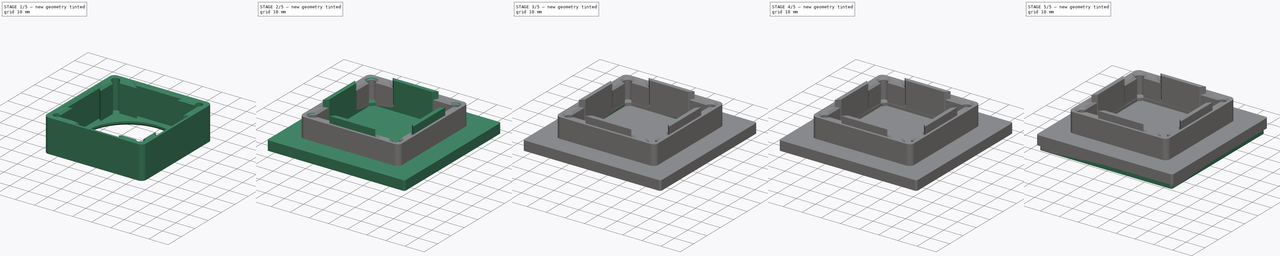
[diagram: build sequence overview — one tinted view per stage of 5, left to right]
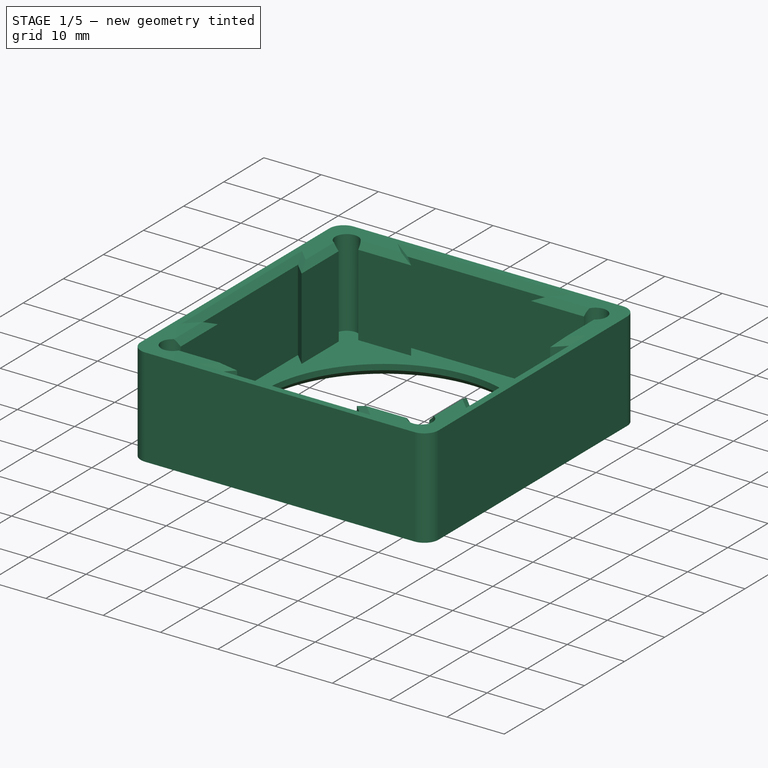
[diagram: stage 1 of 5 — iso view after this stage's code; geometry added in this stage tinted green]
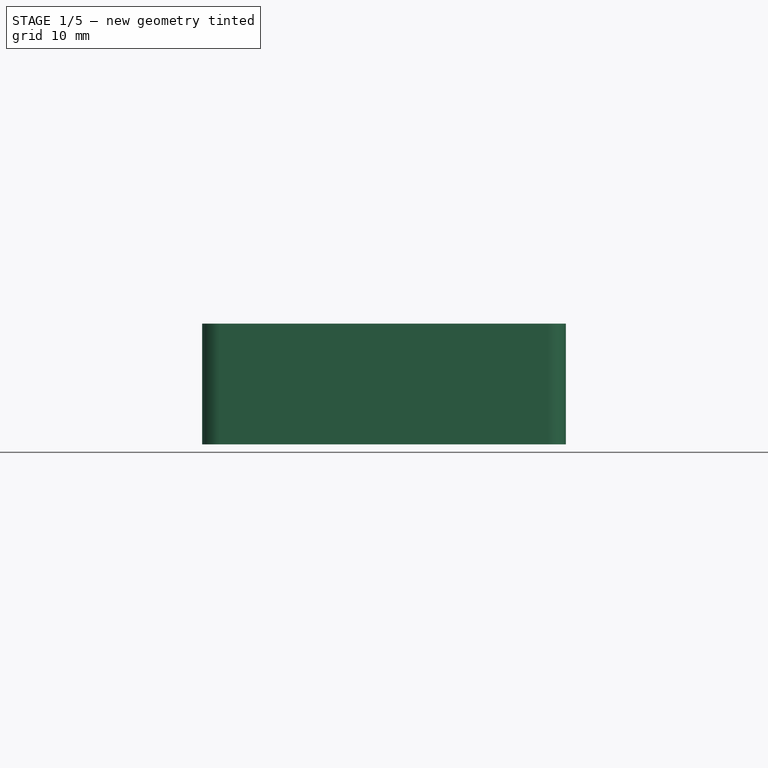
[diagram: stage 1 of 5 — front view after this stage's code; geometry added in this stage tinted green]
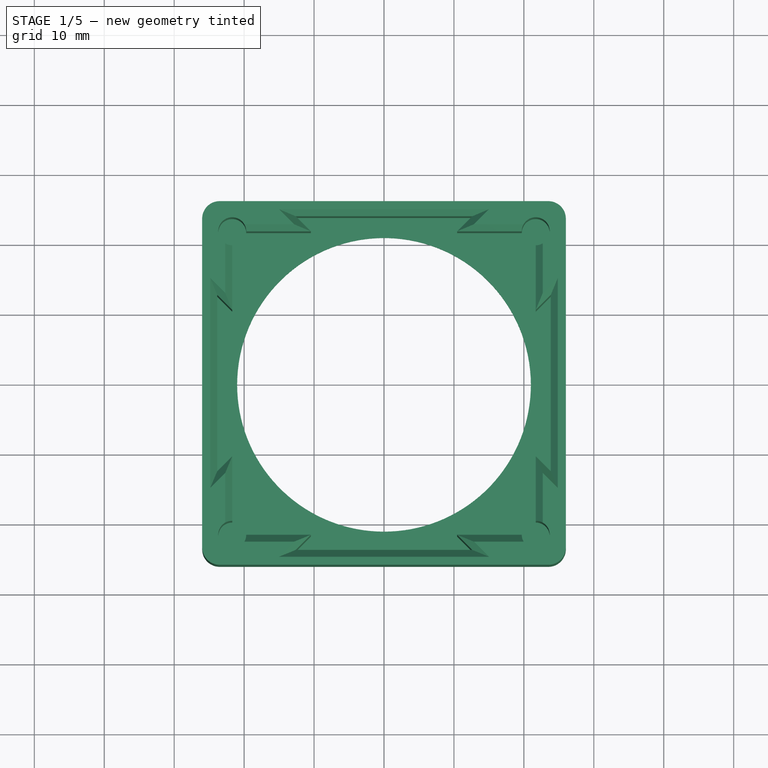
[diagram: stage 1 of 5 — top view after this stage's code; geometry added in this stage tinted green]
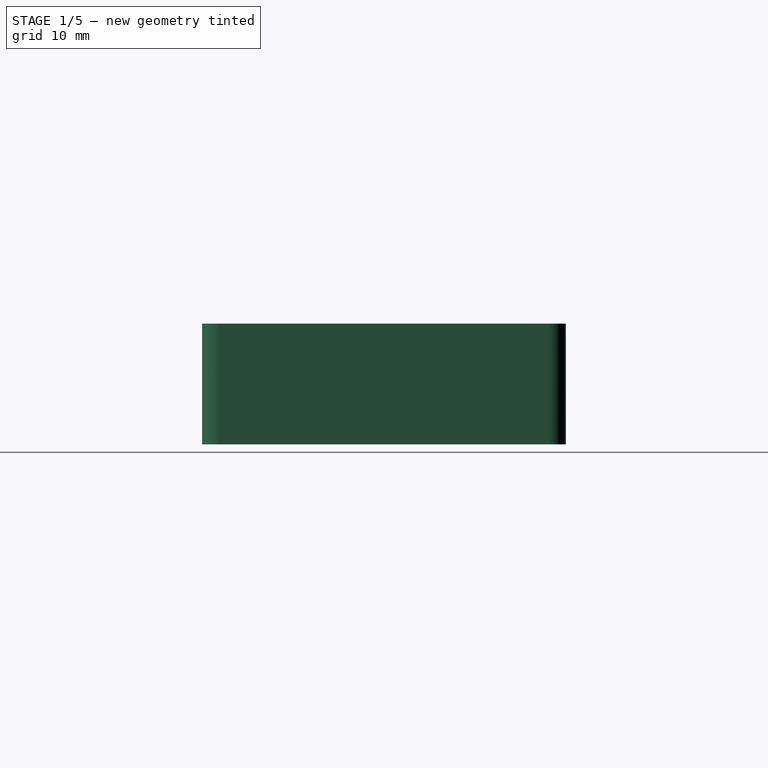
[diagram: stage 1 of 5 — right view after this stage's code; geometry added in this stage tinted green]
FCSTD DOCUMENT  (FreeCAD 0.20R29177 (Git))
Label: Nees_blinddæksel
License: Creative Commons Attribution
LicenseURL: http://creativecommons.org/licenses/by/4.0/
objects: Sketcher::SketchObject×23, PartDesign::Pocket×16, PartDesign::Chamfer×12, PartDesign::Pad×7, PartDesign::Fillet×5, PartDesign::Body×5, PartDesign::PolarPattern×2
note: 110 computed .brp shape members not serialized (recipe doc carries the construction recipe); baked Part::Feature solids carry a one-line shape summary decoded from their .brp

FEATURE [PartDesign::Body] Body003
  Group = -> [Sketch015,Pad004,Sketch016,Pocket011,Sketch017,Pocket012,Sketch018,Pocket013,Sketch019,Pad005,PolarPattern,Chamfer004,Chamfer005,Chamfer006,Sketch020,Pocket014]
  Origin = -> Origin003
  Tip = -> Pocket014
FEATURE [Sketcher::SketchObject] Sketch021
  FullyConstrained = true
  MapMode = 5
  Support = -> [XY_Plane004]
  sketch-geometry (10):
    g0: LineSegment StartX=26 StartY=-23.5 StartZ=0 EndX=26 EndY=23.5 EndZ=0
    g1: LineSegment StartX=23.5 StartY=26 StartZ=0 EndX=-23.5 EndY=26 EndZ=0
    g2: LineSegment StartX=-26 StartY=23.5 StartZ=0 EndX=-26 EndY=-23.5 EndZ=0
    g3: LineSegment StartX=-23.5 StartY=-26 StartZ=0 EndX=23.5 EndY=-26 EndZ=0
    g4: GeomPoint X=0 Y=0 Z=0
    g5: Circle CenterX=0 CenterY=0 CenterZ=0 NormalX=0 NormalY=0 NormalZ=1 AngleXU=0 Radius=21
    g6: ArcOfCircle CenterX=23.5 CenterY=23.5 CenterZ=0 NormalX=0 NormalY=0 NormalZ=1 AngleXU=0 Radius=2.5 StartAngle=4e-16 EndAngle=1.5708
    g7: ArcOfCircle CenterX=-23.5 CenterY=23.5 CenterZ=0 NormalX=0 NormalY=0 NormalZ=1 AngleXU=0 Radius=2.5 StartAngle=1.5708 EndAngle=3.14159
    g8: ArcOfCircle CenterX=-23.5 CenterY=-23.5 CenterZ=0 NormalX=0 NormalY=0 NormalZ=1 AngleXU=0 Radius=2.5 StartAngle=3.14159 EndAngle=4.71239
    g9: ArcOfCircle CenterX=23.5 CenterY=-23.5 CenterZ=0 NormalX=0 NormalY=0 NormalZ=1 AngleXU=0 Radius=2.5 StartAngle=4.71239 EndAngle=6.28319
  constraints (22):
    c: Horizontal(g1)
    c: Horizontal(g3)
    c: Vertical(g0)
    c: Vertical(g2)
    c: Coincident(g4,g-1)
    c: Equal(g1,g0)
    c: Diameter(g5) = 42
    c: Coincident(g5,g4)
    c: Tangent(g1,g6) = -1.5708
    c: Tangent(g0,g6) = -1.5708
    c: Tangent(g1,g7) = -1.5708
    c: Tangent(g2,g7) = -1.5708
    c: Tangent(g2,g8) = -1.5708
    c: Tangent(g3,g8) = -1.5708
    c: Tangent(g3,g9) = -1.5708
    c: Tangent(g0,g9) = -1.5708
    c: Equal(g9,g6)
    c: Equal(g6,g7)
    c: Equal(g7,g8)
    c: Diameter(g6) = 5
    c: DistanceX(g2,g0) = 52
    c: Symmetric(g9,g7,g5)
FEATURE [PartDesign::Pad] Pad006
  Direction = (0,0,1)
  Length = 15.25
  Length2 = 2
  Profile = -> Sketch021
  ReferenceAxis = -> Sketch021 [N_Axis]
  Refine = true
  Type = 4
FEATURE [Sketcher::SketchObject] Sketch022
  FullyConstrained = true
  MapMode = 5
  Support = -> [XY_Plane004]
  sketch-geometry (5):
    g0: LineSegment StartX=21.7 StartY=-21.7 StartZ=0 EndX=21.7 EndY=21.7 EndZ=0
    g1: LineSegment StartX=21.7 StartY=21.7 StartZ=0 EndX=-21.7 EndY=21.7 EndZ=0
    g2: LineSegment StartX=-21.7 StartY=21.7 StartZ=0 EndX=-21.7 EndY=-21.7 EndZ=0
    g3: LineSegment StartX=-21.7 StartY=-21.7 StartZ=0 EndX=21.7 EndY=-21.7 EndZ=0
    g4: GeomPoint X=0 Y=0 Z=0
  constraints (12):
    c: Coincident(g0,g1)
    c: Coincident(g1,g2)
    c: Coincident(g2,g3)
    c: Coincident(g3,g0)
    c: Horizontal(g1)
    c: Horizontal(g3)
    c: Vertical(g0)
    c: Vertical(g2)
    c: Symmetric(g1,g0,g4)
    c: Coincident(g4,g-1)
    c: Equal(g1,g0)
    c: DistanceY(g0,g0) = 43.4
FEATURE [PartDesign::Pocket] Pocket015
  BaseFeature = -> Pad006
  Direction = (0,0,-1)
  Length = 5
  Length2 = 5
  Profile = -> Sketch022
  ReferenceAxis = -> Sketch022 [N_Axis]
  Refine = true
  Reversed = true
  Type = 1
FEATURE [Sketcher::SketchObject] Sketch023
  FullyConstrained = false
  MapMode = 5
  Support = -> [XY_Plane004]
  sketch-geometry (14):
    g0: LineSegment StartX=-21.6 StartY=-21.6 StartZ=0 EndX=-21.6 EndY=21.6 EndZ=0
    g1: LineSegment StartX=-21.6 StartY=21.6 StartZ=0 EndX=21.6 EndY=21.6 EndZ=0
    g2: LineSegment StartX=21.6 StartY=21.6 StartZ=0 EndX=21.6 EndY=-21.6 EndZ=0
    g3: LineSegment StartX=21.6 StartY=-21.6 StartZ=0 EndX=-21.6 EndY=-21.6 EndZ=0
    g4: GeomPoint X=0 Y=0 Z=0
    g5: LineSegment StartX=-10 StartY=21.6 StartZ=0 EndX=-12 EndY=23.6 EndZ=0
    g6: LineSegment StartX=-12 StartY=23.6 StartZ=0 EndX=12 EndY=23.6 EndZ=0
    g7: LineSegment StartX=12 StartY=23.6 StartZ=0 EndX=10 EndY=21.6 EndZ=0
    g8: LineSegment StartX=10 StartY=21.6 StartZ=0 EndX=-10 EndY=21.6 EndZ=0
    g9: LineSegment StartX=-9.40646 StartY=20.6529 StartZ=0 EndX=-12.6036 EndY=23.85 EndZ=0
    g10: LineSegment StartX=-12.6036 StartY=23.85 StartZ=0 EndX=12.6036 EndY=23.85 EndZ=0
    g11: LineSegment StartX=12.6036 StartY=23.85 StartZ=0 EndX=9.40646 EndY=20.6529 EndZ=0
    g12: LineSegment StartX=9.40646 StartY=20.6529 StartZ=0 EndX=-9.40646 EndY=20.6529 EndZ=0
    g13: LineSegment StartX=-11.2738 StartY=22.8738 StartZ=0 EndX=-11.4506 EndY=22.697 EndZ=0
  constraints (35):
    c: Coincident(g0,g1)
    c: Coincident(g1,g2)
    c: Coincident(g2,g3)
    c: Coincident(g3,g0)
    c: Horizontal(g1)
    c: Horizontal(g3)
    c: Vertical(g0)
    c: Vertical(g2)
    c: Symmetric(g1,g0,g4)
    c: Coincident(g4,g-1)
    c: Equal(g1,g2)
    c: DistanceY(g2,g2) = 43.2
    c: Coincident(g5,g6)
    c: Coincident(g6,g7)
    c: Coincident(g7,g8)
    c: Coincident(g8,g5)
    c: Angle(g7,g5) = 1.5708
    c: Symmetric(g7,g5,g-2)
    c: Symmetric(g5,g6,g-2)
    c: PointOnObject(g7,g1)
    c: DistanceY(g7,g6) = 2
    c: Coincident(g9,g10)
    c: Coincident(g10,g11)
    c: Coincident(g11,g12)
    c: Coincident(g12,g9)
    c: Horizontal(g12)
    c: Parallel(g9,g5)
    c: Parallel(g11,g7)
    c: DistanceY(g5,g9) = 0.25
    c: PointOnObject(g13,g5)
    c: PointOnObject(g13,g9)
    c: Perpendicular(g9,g13)
    c: Distance(g13) = 0.25
    c: DistanceX(g5,g7) = 20
    c: Symmetric(g9,g10,g-2)
FEATURE [PartDesign::Pocket] Pocket016
  BaseFeature = -> Pocket015
  Direction = (0,0,-1)
  Length = 5
  Length2 = 5
  Profile = -> Sketch023
  ReferenceAxis = -> Sketch023 [N_Axis]
  Refine = true
  Reversed = true
  Type = 1
FEATURE [PartDesign::PolarPattern] PolarPattern001
  Angle = 360
  Axis = -> Sketch023 [N_Axis]
  BaseFeature = -> Pocket016
  Occurrences = 4
  Originals = -> [Pocket016]
  Refine = true
FEATURE [Sketcher::SketchObject] Sketch024
  ExternalGeometry = -> [PolarPattern001]
  FullyConstrained = true
  MapMode = 5
  Support = -> [XY_Plane004]
  sketch-geometry (4):
    g0: Circle CenterX=-21.7 CenterY=-21.7 CenterZ=0 NormalX=0 NormalY=0 NormalZ=1 AngleXU=0 Radius=2
    g1: Circle CenterX=21.7 CenterY=21.7 CenterZ=0 NormalX=0 NormalY=0 NormalZ=1 AngleXU=0 Radius=2
    g2: Circle CenterX=-21.7 CenterY=21.7 CenterZ=0 NormalX=0 NormalY=0 NormalZ=1 AngleXU=0 Radius=2
    g3: Circle CenterX=21.7 CenterY=-21.7 CenterZ=0 NormalX=0 NormalY=0 NormalZ=1 AngleXU=0 Radius=2
  constraints (8):
    c: Coincident(g0,g-4)
    c: Coincident(g1,g-3)
    c: Equal(g1,g0)
    c: Diameter(g1) = 4
    c: Coincident(g2,g-5)
    c: Coincident(g3,g-6)
    c: Equal(g3,g2)
    c: Equal(g2,g1)
FEATURE [PartDesign::Pocket] Pocket017
  BaseFeature = -> PolarPattern001
  Direction = (0,0,-1)
  Length = 5
  Length2 = 5
  Profile = -> Sketch024
  ReferenceAxis = -> Sketch024 [N_Axis]
  Refine = true
  Reversed = true
  Type = 1
FEATURE [PartDesign::Chamfer] Chamfer007
  Angle = 45
  Base = -> Pocket017 [Edge44,Edge43,Edge42,Edge38,Edge37,Edge36,Edge31,Edge30,Edge29,Edge22,Edge23,Edge24]
  BaseFeature = -> Pocket017
  ChamferType = 0
  FlipDirection = false
  Refine = true
  Size = 1
  Size2 = 1
  SupportTransform = false
  UseAllEdges = false
FEATURE [PartDesign::Chamfer] Chamfer008
  Angle = 45
  Base = -> Chamfer007 [Edge138]
  BaseFeature = -> Chamfer007
  ChamferType = 0
  FlipDirection = false
  Refine = true
  Size = 1
  Size2 = 1
  SupportTransform = false
  UseAllEdges = false
FEATURE [PartDesign::Chamfer] Chamfer009
  Angle = 45
  Base = -> Chamfer008 [Edge57,Edge49,Edge61,Edge58,Edge52,Edge44,Edge38,Edge45]
  BaseFeature = -> Chamfer008
  ChamferType = 0
  FlipDirection = false
  Refine = true
  Size = 1
  Size2 = 1
  SupportTransform = false
  UseAllEdges = false
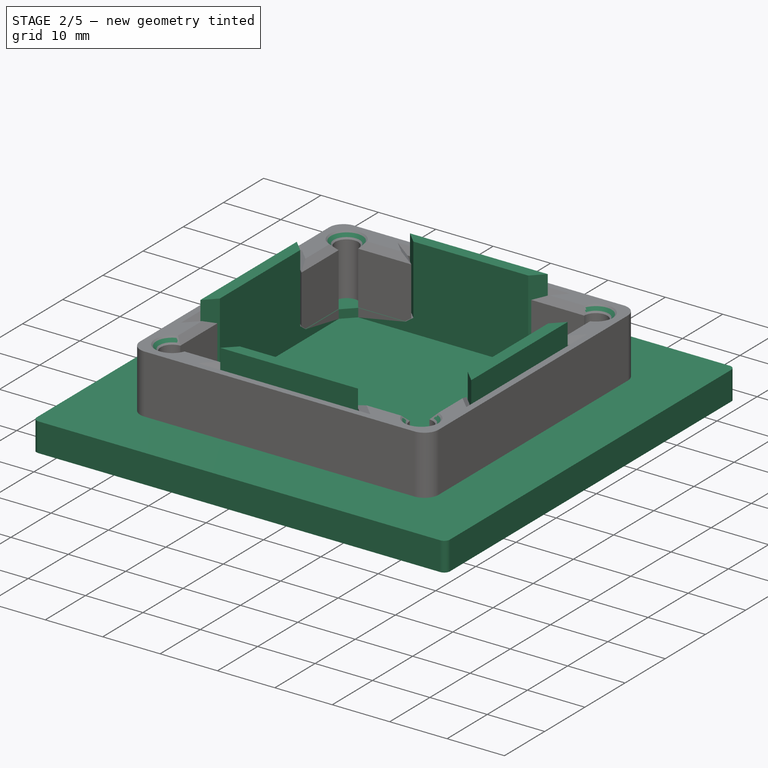
[diagram: stage 2 of 5 — iso view after this stage's code; geometry added in this stage tinted green]
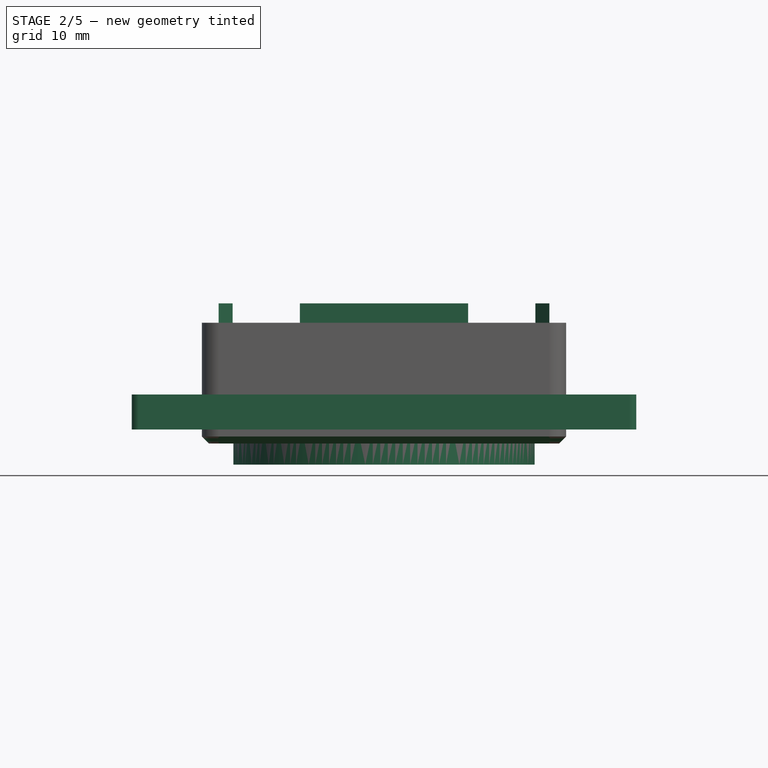
[diagram: stage 2 of 5 — front view after this stage's code; geometry added in this stage tinted green]
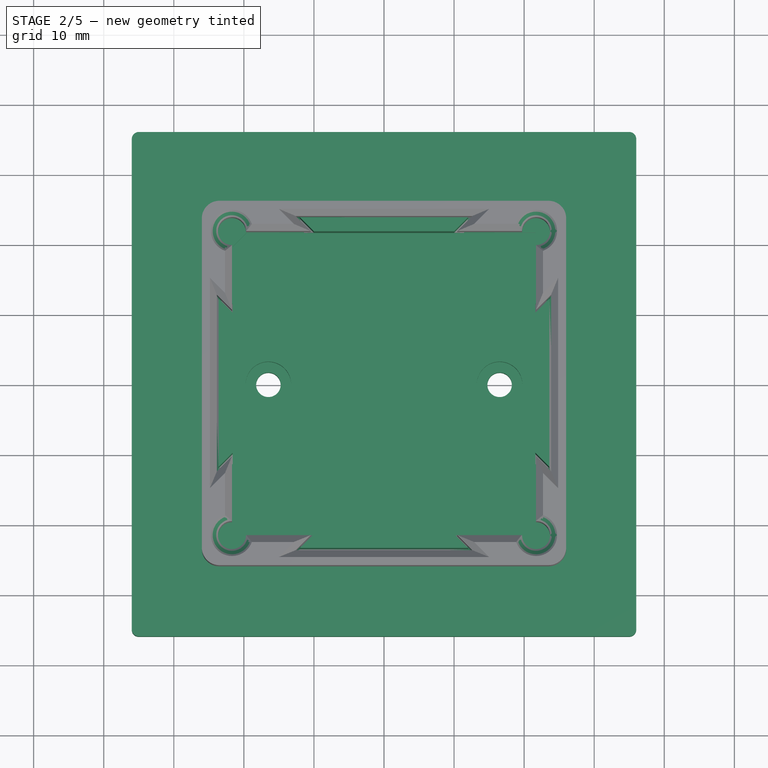
[diagram: stage 2 of 5 — top view after this stage's code; geometry added in this stage tinted green]
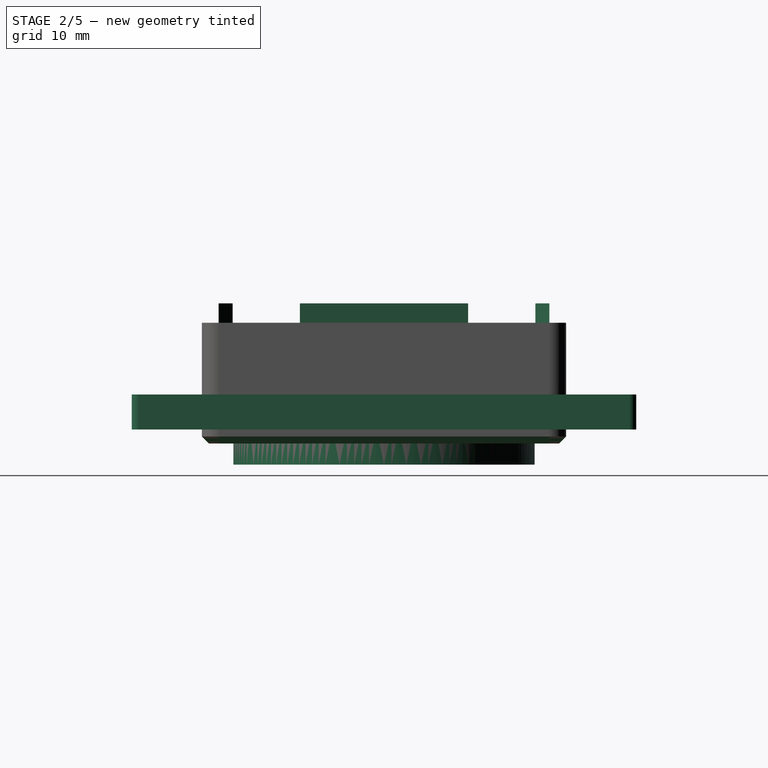
[diagram: stage 2 of 5 — right view after this stage's code; geometry added in this stage tinted green]
FEATURE [PartDesign::Body] Body002
  Group = -> [Sketch008,Pad003,Sketch009,Pocket005,Sketch012,Pocket008,Sketch013,Pocket009,Chamfer002,Fillet003,Fillet004,Sketch014,Pocket010,Chamfer003]
  Origin = -> Origin002
  Tip = -> Chamfer003
FEATURE [Sketcher::SketchObject] Sketch015
  FullyConstrained = true
  MapMode = 5
  Support = -> [XY_Plane003]
  sketch-geometry (12):
    g0: ArcOfCircle CenterX=-35 CenterY=35 CenterZ=0 NormalX=0 NormalY=0 NormalZ=1 AngleXU=0 Radius=1 StartAngle=1.5708 EndAngle=3.14159
    g1: LineSegment StartX=-35 StartY=36 StartZ=0 EndX=35 EndY=36 EndZ=0
    g2: ArcOfCircle CenterX=35 CenterY=35 CenterZ=0 NormalX=0 NormalY=0 NormalZ=1 AngleXU=0 Radius=1 StartAngle=-2.7e-15 EndAngle=1.5708
    g3: LineSegment StartX=36 StartY=35 StartZ=0 EndX=36 EndY=-35 EndZ=0
    g4: ArcOfCircle CenterX=35 CenterY=-35 CenterZ=0 NormalX=0 NormalY=0 NormalZ=1 AngleXU=0 Radius=1 StartAngle=4.71239 EndAngle=6.28319
    g5: LineSegment StartX=35 StartY=-36 StartZ=0 EndX=-35 EndY=-36 EndZ=0
    g6: ArcOfCircle CenterX=-35 CenterY=-35 CenterZ=0 NormalX=0 NormalY=0 NormalZ=1 AngleXU=0 Radius=1 StartAngle=3.14159 EndAngle=4.71239
    g7: LineSegment StartX=-36 StartY=-35 StartZ=0 EndX=-36 EndY=35 EndZ=0
    g8: GeomPoint X=-36 Y=36 Z=0
    g9: GeomPoint X=36 Y=-36 Z=0
    g10: Circle CenterX=-16.5 CenterY=0 CenterZ=0 NormalX=0 NormalY=0 NormalZ=1 AngleXU=0 Radius=1.75
    g11: Circle CenterX=16.5 CenterY=0 CenterZ=0 NormalX=0 NormalY=0 NormalZ=1 AngleXU=0 Radius=1.75
  constraints (28):
    c: Tangent(g0,g1) = 1.5708
    c: Tangent(g1,g2) = 1.5708
    c: Tangent(g2,g3) = 1.5708
    c: Tangent(g3,g4) = 1.5708
    c: Tangent(g4,g5) = 1.5708
    c: Tangent(g5,g6) = 1.5708
    c: Tangent(g6,g7) = 1.5708
    c: Tangent(g7,g0) = 1.5708
    c: Horizontal(g1)
    c: Horizontal(g5)
    c: Vertical(g3)
    c: Vertical(g7)
    c: Equal(g0,g2)
    c: Equal(g2,g4)
    c: Equal(g4,g6)
    c: PointOnObject(g8,g1)
    c: PointOnObject(g8,g7)
    c: PointOnObject(g9,g3)
    c: PointOnObject(g9,g5)
    c: Symmetric(g0,g4,g-1)
    c: Equal(g1,g3)
    c: Horizontal(g11,g10)
    c: Equal(g10,g11)
    c: Diameter(g11) = 3.5
    c: Symmetric(g11,g10,g-1)
    c: DistanceX(g0,g2) = 72
    c: Diameter(g2) = 2
    c: DistanceX(g10,g11) = 33
FEATURE [PartDesign::Pad] Pad004
  Direction = (0,0,1)
  Length = 10
  Length2 = 10
  Midplane = true
  Profile = -> Sketch015
  ReferenceAxis = -> Sketch015 [N_Axis]
  Refine = true
  Type = 0
FEATURE [Sketcher::SketchObject] Sketch016
  AttachmentOffset = pos=(0,0,3.5) rot=(0,0,1;0rad)
  FullyConstrained = true
  MapMode = 5
  Placement = pos=(0,0,3.5) rot=(0,0,1;0rad)
  Support = -> [XY_Plane003]
  sketch-geometry (6):
    g0: LineSegment StartX=-19.6 StartY=21.6 StartZ=0 EndX=21.6 EndY=21.6 EndZ=0
    g1: LineSegment StartX=21.6 StartY=21.6 StartZ=0 EndX=21.6 EndY=-19.6 EndZ=0
    g2: LineSegment StartX=21.6 StartY=-19.6 StartZ=0 EndX=19.6 EndY=-21.6 EndZ=0
    g3: LineSegment StartX=19.6 StartY=-21.6 StartZ=0 EndX=-21.6 EndY=-21.6 EndZ=0
    g4: LineSegment StartX=-21.6 StartY=-21.6 StartZ=0 EndX=-21.6 EndY=19.6 EndZ=0
    g5: LineSegment StartX=-21.6 StartY=19.6 StartZ=0 EndX=-19.6 EndY=21.6 EndZ=0
  constraints (17):
    c: Horizontal(g0)
    c: Coincident(g0,g1)
    c: Vertical(g1)
    c: Coincident(g1,g2)
    c: Coincident(g2,g3)
    c: Coincident(g3,g4)
    c: Vertical(g4)
    c: Coincident(g4,g5)
    c: Coincident(g0,g5)
    c: Angle(g4,g5) = 2.35619
    c: Parallel(g5,g2)
    c: Equal(g2,g5)
    c: Horizontal(g3)
    c: DistanceX(g4,g0) = 2
    c: Symmetric(g1,g4,g-1)
    c: Equal(g0,g4)
    c: DistanceX(g4,g0) = 43.2
FEATURE [PartDesign::Pocket] Pocket011
  BaseFeature = -> Pad004
  Direction = (0,0,-1)
  Length = 5
  Length2 = 5
  Profile = -> Sketch016
  ReferenceAxis = -> Sketch016 [N_Axis]
  Refine = true
  Reversed = true
  Type = 0
FEATURE [Sketcher::SketchObject] Sketch017
  FullyConstrained = true
  MapMode = 5
  Support = -> [XY_Plane003]
  sketch-geometry (6):
    g0: Circle CenterX=-1e-16 CenterY=0 CenterZ=0 NormalX=0 NormalY=0 NormalZ=1 AngleXU=0 Radius=21.5
    g1: LineSegment StartX=37 StartY=-37 StartZ=0 EndX=37 EndY=37 EndZ=0
    g2: LineSegment StartX=37 StartY=37 StartZ=0 EndX=-37 EndY=37 EndZ=0
    g3: LineSegment StartX=-37 StartY=37 StartZ=0 EndX=-37 EndY=-37 EndZ=0
    g4: LineSegment StartX=-37 StartY=-37 StartZ=0 EndX=37 EndY=-37 EndZ=0
    g5: GeomPoint X=-1e-16 Y=0 Z=0
  constraints (14):
    c: Coincident(g0,g-1)
    c: Diameter(g0) = 43
    c: Coincident(g1,g2)
    c: Coincident(g2,g3)
    c: Coincident(g3,g4)
    c: Coincident(g4,g1)
    c: Horizontal(g2)
    c: Horizontal(g4)
    c: Vertical(g1)
    c: Vertical(g3)
    c: Symmetric(g2,g1,g5)
    c: Coincident(g5,g0)
    c: Equal(g2,g1)
    c: DistanceX(g2,g2) = 74
FEATURE [PartDesign::Pocket] Pocket012
  BaseFeature = -> Pocket011
  Direction = (0,0,-1)
  Length = 5
  Length2 = 5
  Profile = -> Sketch017
  ReferenceAxis = -> Sketch017 [N_Axis]
  Refine = true
  Type = 0
FEATURE [Sketcher::SketchObject] Sketch018
  ExternalGeometry = -> [Pocket012]
  FullyConstrained = true
  MapMode = 5
  Support = -> [XY_Plane003]
  sketch-geometry (2):
    g0: Circle CenterX=-16.5 CenterY=0 CenterZ=0 NormalX=0 NormalY=0 NormalZ=1 AngleXU=0 Radius=3.25
    g1: Circle CenterX=16.5 CenterY=0 CenterZ=0 NormalX=0 NormalY=0 NormalZ=1 AngleXU=0 Radius=3.25
  constraints (4):
    c: Coincident(g0,g-3)
    c: Coincident(g1,g-4)
    c: Equal(g1,g0)
    c: Diameter(g1) = 6.5
FEATURE [PartDesign::Pocket] Pocket013
  BaseFeature = -> Pocket012
  Direction = (0,0,-1)
  Length = 5
  Length2 = 5
  Profile = -> Sketch018
  ReferenceAxis = -> Sketch018 [N_Axis]
  Refine = true
  Reversed = true
  Type = 0
FEATURE [Sketcher::SketchObject] Sketch019
  AttachmentOffset = pos=(0,0,5) rot=(0,0,1;0rad)
  FullyConstrained = true
  MapMode = 5
  Placement = pos=(0,0,5) rot=(0,0,1;0rad)
  Support = -> [XY_Plane003]
  expr: Constraints[9] = 43.2 / 2
  sketch-geometry (4):
    g0: LineSegment StartX=-10 StartY=21.6 StartZ=0 EndX=-12 EndY=23.6 EndZ=0
    g1: LineSegment StartX=-12 StartY=23.6 StartZ=0 EndX=12 EndY=23.6 EndZ=0
    g2: LineSegment StartX=12 StartY=23.6 StartZ=0 EndX=10 EndY=21.6 EndZ=0
    g3: LineSegment StartX=10 StartY=21.6 StartZ=0 EndX=-10 EndY=21.6 EndZ=0
  constraints (12):
    c: Coincident(g0,g1)
    c: Horizontal(g1)
    c: Coincident(g1,g2)
    c: Coincident(g2,g3)
    c: Coincident(g3,g0)
    c: Angle(g2,g0) = 1.5708
    c: DistanceY(g0,g0) = 2
    c: Symmetric(g2,g0,g-2)
    c: Equal(g2,g0)
    c: DistanceY(g-1,g2) = 21.6
    c: DistanceX(g0,g2) = 20
    c: DistanceY(g-1,g1) = 23.6
FEATURE [PartDesign::Pad] Pad005
  BaseFeature = -> Pocket013
  Direction = (0,0,1)
  Length = 13
  Length2 = 10
  Profile = -> Sketch019
  ReferenceAxis = -> Sketch019 [N_Axis]
  Refine = true
  Type = 0
FEATURE [PartDesign::PolarPattern] PolarPattern
  Angle = 360
  Axis = -> Sketch019 [N_Axis]
  BaseFeature = -> Pad005
  Occurrences = 4
  Originals = -> [Pad005]
  Refine = true
FEATURE [PartDesign::Chamfer] Chamfer004
  Angle = 45
  Base = -> PolarPattern [Edge29,Edge34,Edge40,Edge23,Edge35,Edge22,Edge30,Edge28,Edge24,Edge33,Edge41,Edge39]
  BaseFeature = -> PolarPattern
  ChamferType = 0
  FlipDirection = false
  Refine = true
  Size = 1
  Size2 = 1
  SupportTransform = false
  UseAllEdges = false
FEATURE [PartDesign::Chamfer] Chamfer010
  Angle = 45
  Base = -> Chamfer009 [Edge20,Edge21,Edge9,Edge4]
  BaseFeature = -> Chamfer009
  ChamferType = 0
  FlipDirection = false
  Refine = true
  Size = 1
  Size2 = 1
  SupportTransform = false
  UseAllEdges = false
FEATURE [PartDesign::Chamfer] Chamfer011
  Angle = 45
  Base = -> Chamfer010 [Edge95]
  BaseFeature = -> Chamfer010
  ChamferType = 0
  FlipDirection = false
  Refine = true
  Size = 1
  Size2 = 1
  SupportTransform = false
  UseAllEdges = false
FEATURE [PartDesign::Body] Body004
  Group = -> [Sketch021,Pad006,Sketch022,Pocket015,Sketch023,Pocket016,PolarPattern001,Sketch024,Pocket017,Chamfer007,Chamfer008,Chamfer009,Chamfer010,Chamfer011]
  Origin = -> Origin004
  Tip = -> Chamfer011
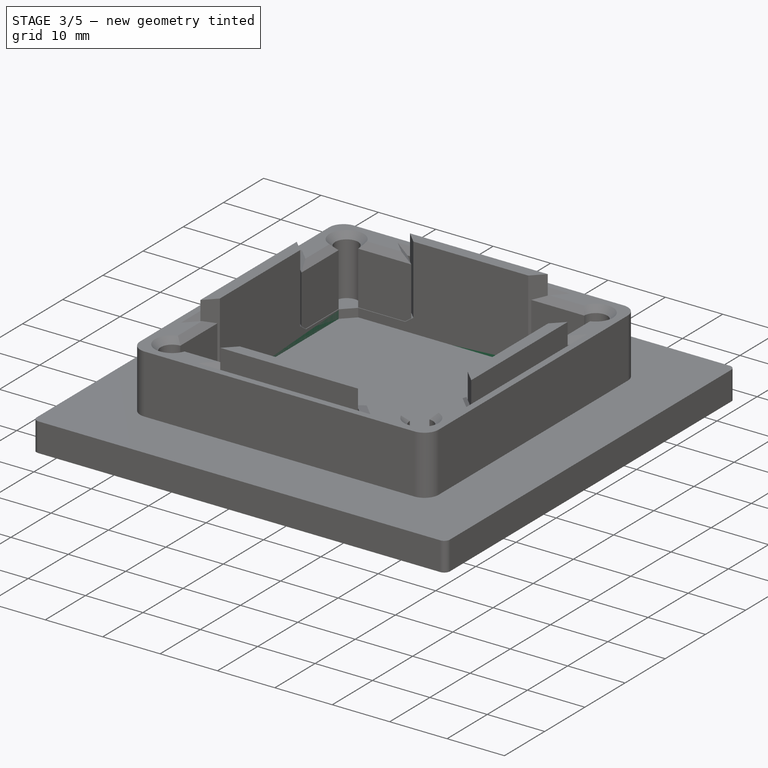
[diagram: stage 3 of 5 — iso view after this stage's code; geometry added in this stage tinted green]
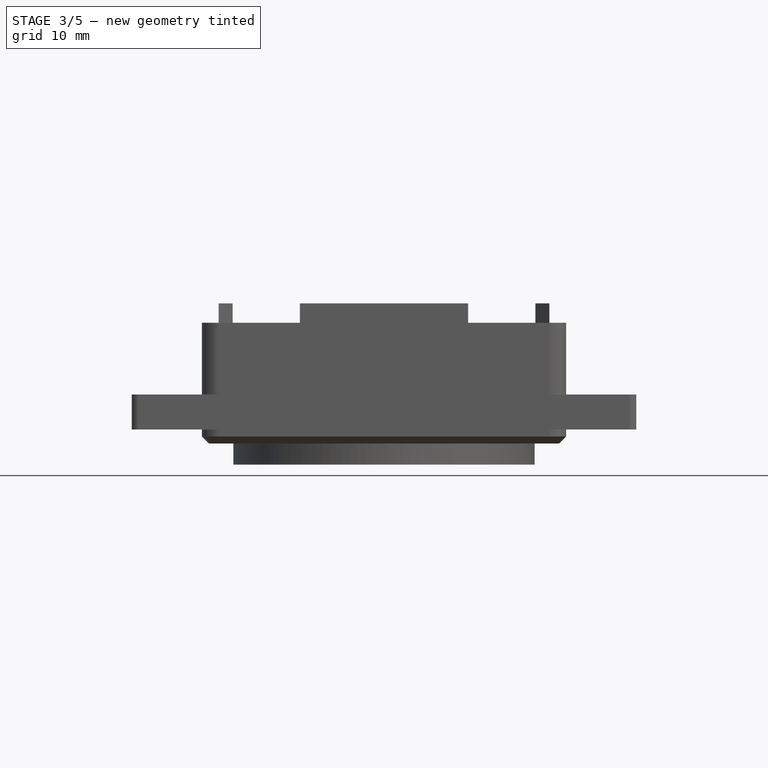
[diagram: stage 3 of 5 — front view after this stage's code; geometry added in this stage tinted green]
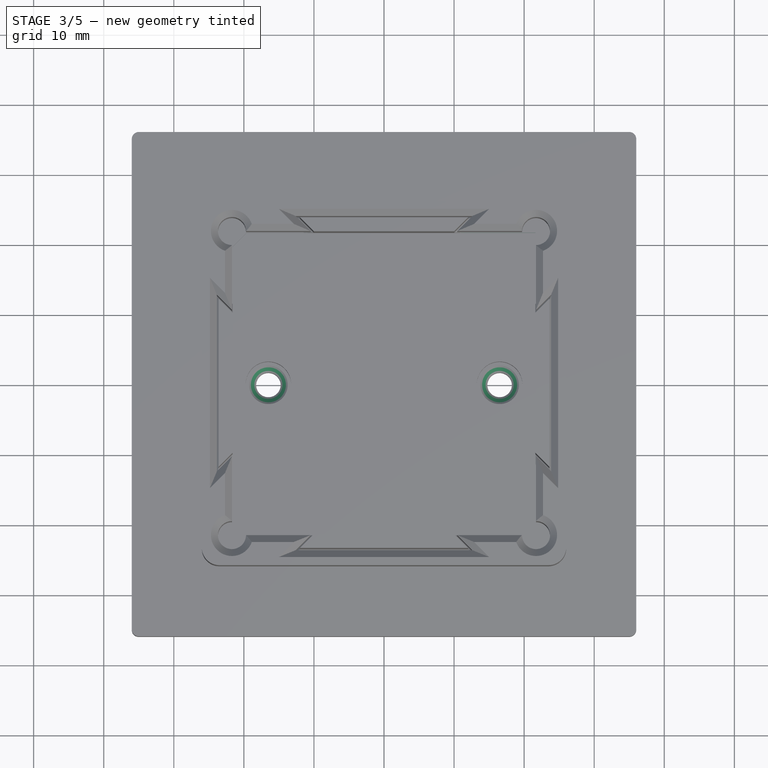
[diagram: stage 3 of 5 — top view after this stage's code; geometry added in this stage tinted green]
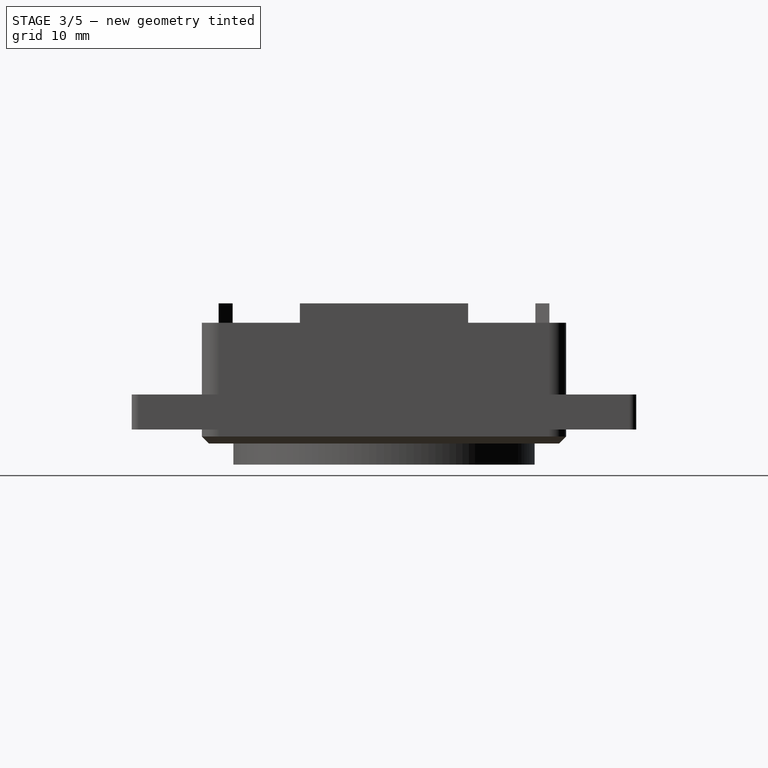
[diagram: stage 3 of 5 — right view after this stage's code; geometry added in this stage tinted green]
FEATURE [PartDesign::Body] Body001
  Group = -> [Sketch003,Pad002,Sketch004,Pocket001,Sketch005,Pocket002,Sketch006,Pocket003,Fillet002,Sketch007,Pocket004,Chamfer001]
  Origin = -> Origin001
  Tip = -> Chamfer001
FEATURE [Sketcher::SketchObject] Sketch008
  FullyConstrained = true
  MapMode = 5
  Support = -> [XY_Plane002]
  sketch-geometry (10):
    g0: LineSegment StartX=-35 StartY=36 StartZ=0 EndX=35 EndY=36 EndZ=0
    g1: LineSegment StartX=36 StartY=35 StartZ=0 EndX=36 EndY=-35 EndZ=0
    g2: LineSegment StartX=35 StartY=-36 StartZ=0 EndX=-35 EndY=-36 EndZ=0
    g3: LineSegment StartX=-36 StartY=-35 StartZ=0 EndX=-36 EndY=35 EndZ=0
    g4: ArcOfCircle CenterX=-35 CenterY=35 CenterZ=0 NormalX=0 NormalY=0 NormalZ=1 AngleXU=0 Radius=1 StartAngle=1.5708 EndAngle=3.14159
    g5: ArcOfCircle CenterX=-35 CenterY=-35 CenterZ=0 NormalX=0 NormalY=0 NormalZ=1 AngleXU=0 Radius=1 StartAngle=3.14159 EndAngle=4.71239
    g6: ArcOfCircle CenterX=35 CenterY=-35 CenterZ=0 NormalX=0 NormalY=0 NormalZ=1 AngleXU=0 Radius=1 StartAngle=4.71239 EndAngle=6.28319
    g7: ArcOfCircle CenterX=35 CenterY=35 CenterZ=0 NormalX=0 NormalY=0 NormalZ=1 AngleXU=0 Radius=1 StartAngle=2.3e-15 EndAngle=1.5708
    g8: Circle CenterX=-16.5 CenterY=0 CenterZ=0 NormalX=0 NormalY=0 NormalZ=1 AngleXU=0 Radius=1.75
    g9: Circle CenterX=16.5 CenterY=0 CenterZ=0 NormalX=0 NormalY=0 NormalZ=1 AngleXU=0 Radius=1.75
  constraints (24):
    c: Horizontal(g0)
    c: Horizontal(g2)
    c: Vertical(g1)
    c: Vertical(g3)
    c: Tangent(g0,g4) = 1.5708
    c: Tangent(g3,g4) = 1.5708
    c: Tangent(g3,g5) = 1.5708
    c: Tangent(g2,g5) = 1.5708
    c: Tangent(g2,g6) = 1.5708
    c: Tangent(g1,g6) = 1.5708
    c: Tangent(g1,g7) = 1.5708
    c: Tangent(g0,g7) = 1.5708
    c: Equal(g1,g0)
    c: Equal(g4,g7)
    c: Equal(g7,g5)
    c: Equal(g5,g6)
    c: Symmetric(g4,g6,g-1)
    c: Diameter(g7) = 2
    c: DistanceX(g3,g1) = 72
    c: Equal(g8,g9)
    c: Horizontal(g9,g8)
    c: Diameter(g8) = 3.5
    c: DistanceX(g8,g9) = 33
    c: Symmetric(g9,g8,g-1)
FEATURE [PartDesign::Pad] Pad003
  Direction = (0,0,1)
  Length = 10
  Length2 = 10
  Midplane = true
  Profile = -> Sketch008
  ReferenceAxis = -> Sketch008 [N_Axis]
  Refine = true
  Type = 0
FEATURE [Sketcher::SketchObject] Sketch009
  FullyConstrained = false
  MapMode = 5
  Support = -> [XY_Plane002]
  sketch-geometry (5):
    g0: LineSegment StartX=-44.3803 StartY=41.6873 StartZ=0 EndX=45.2528 EndY=41.6873 EndZ=0
    g1: LineSegment StartX=45.2528 StartY=41.6873 StartZ=0 EndX=45.2528 EndY=-45.0583 EndZ=0
    g2: LineSegment StartX=45.2528 StartY=-45.0583 StartZ=0 EndX=-44.3803 EndY=-45.0583 EndZ=0
    g3: LineSegment StartX=-44.3803 StartY=-45.0583 StartZ=0 EndX=-44.3803 EndY=41.6873 EndZ=0
    g4: Circle CenterX=0 CenterY=0 CenterZ=0 NormalX=0 NormalY=0 NormalZ=1 AngleXU=0 Radius=21.5
  constraints (10):
    c: Coincident(g0,g1)
    c: Coincident(g1,g2)
    c: Coincident(g2,g3)
    c: Coincident(g3,g0)
    c: Horizontal(g0)
    c: Horizontal(g2)
    c: Vertical(g1)
    c: Vertical(g3)
    c: Coincident(g4,g-1)
    c: Diameter(g4) = 43
FEATURE [PartDesign::Pocket] Pocket005
  BaseFeature = -> Pad003
  Direction = (0,0,-1)
  Length = 5
  Length2 = 5
  Profile = -> Sketch009
  ReferenceAxis = -> Sketch009 [N_Axis]
  Refine = true
  Type = 0
FEATURE [Sketcher::SketchObject] Sketch012
  AttachmentOffset = pos=(0,0,2.4) rot=(0,0,1;0rad)
  FullyConstrained = true
  MapMode = 5
  Placement = pos=(0,0,2.4) rot=(0,0,1;0rad)
  Support = -> [XY_Plane002]
  sketch-geometry (4):
    g0: LineSegment StartX=-21.6 StartY=21.6 StartZ=0 EndX=21.6 EndY=21.6 EndZ=0
    g1: LineSegment StartX=21.6 StartY=21.6 StartZ=0 EndX=21.6 EndY=-21.6 EndZ=0
    g2: LineSegment StartX=21.6 StartY=-21.6 StartZ=0 EndX=-21.6 EndY=-21.6 EndZ=0
    g3: LineSegment StartX=-21.6 StartY=-21.6 StartZ=0 EndX=-21.6 EndY=21.6 EndZ=0
  constraints (11):
    c: Coincident(g0,g1)
    c: Coincident(g1,g2)
    c: Coincident(g2,g3)
    c: Coincident(g3,g0)
    c: Horizontal(g0)
    c: Horizontal(g2)
    c: Vertical(g1)
    c: Vertical(g3)
    c: Equal(g1,g0)
    c: DistanceY(g1,g1) = 43.2
    c: Symmetric(g0,g1,g-1)
FEATURE [PartDesign::Pocket] Pocket008
  BaseFeature = -> Pocket005
  Direction = (0,0,-1)
  Length = 5
  Length2 = 5
  Profile = -> Sketch012
  ReferenceAxis = -> Sketch012 [N_Axis]
  Refine = true
  Reversed = true
  Type = 0
FEATURE [Sketcher::SketchObject] Sketch013
  FullyConstrained = true
  MapMode = 5
  Support = -> [XY_Plane002]
  sketch-geometry (2):
    g0: Circle CenterX=-16.5 CenterY=0 CenterZ=0 NormalX=0 NormalY=0 NormalZ=1 AngleXU=0 Radius=3.25
    g1: Circle CenterX=16.5 CenterY=0 CenterZ=0 NormalX=0 NormalY=0 NormalZ=1 AngleXU=0 Radius=3.25
  constraints (5):
    c: Equal(g1,g0)
    c: Horizontal(g0,g1)
    c: DistanceX(g0,g1) = 33
    c: Diameter(g1) = 6.5
    c: Symmetric(g1,g0,g-1)
FEATURE [PartDesign::Pocket] Pocket009
  BaseFeature = -> Pocket008
  Direction = (0,0,-1)
  Length = 2
  Length2 = 5
  Profile = -> Sketch013
  ReferenceAxis = -> Sketch013 [N_Axis]
  Refine = true
  Reversed = true
  Type = 1
FEATURE [PartDesign::Chamfer] Chamfer002
  Angle = 45
  Base = -> Pocket009 [Edge45,Edge47]
  BaseFeature = -> Pocket009
  ChamferType = 0
  FlipDirection = false
  Refine = true
  Size = 1
  Size2 = 1
  SupportTransform = false
  UseAllEdges = false
FEATURE [PartDesign::Chamfer] Chamfer005
  Angle = 45
  Base = -> Chamfer004 [Edge129,Edge128]
  BaseFeature = -> Chamfer004
  ChamferType = 0
  FlipDirection = false
  Refine = true
  Size = 1
  Size2 = 1
  SupportTransform = false
  UseAllEdges = false
FEATURE [PartDesign::Chamfer] Chamfer006
  Angle = 45
  Base = -> Chamfer005 [Face14]
  BaseFeature = -> Chamfer005
  ChamferType = 0
  FlipDirection = false
  Refine = true
  Size = 1
  Size2 = 1
  SupportTransform = false
  UseAllEdges = false
FEATURE [Sketcher::SketchObject] Sketch020
  AttachmentOffset = pos=(0,0,2.5) rot=(0,0,1;0rad)
  FullyConstrained = true
  MapMode = 5
  Placement = pos=(0,0,2.5) rot=(0,0,1;0rad)
  Support = -> [XY_Plane003]
  sketch-geometry (21):
    g0: LineSegment StartX=18.5 StartY=-18.5 StartZ=0 EndX=18.5 EndY=18.5 EndZ=0
    g1: LineSegment StartX=18.5 StartY=18.5 StartZ=0 EndX=-18.5 EndY=18.5 EndZ=0
    g2: LineSegment StartX=-18.5 StartY=18.5 StartZ=0 EndX=-18.5 EndY=-18.5 EndZ=0
    g3: LineSegment StartX=-18.5 StartY=-18.5 StartZ=0 EndX=18.5 EndY=-18.5 EndZ=0
    g4: GeomPoint X=0 Y=0 Z=0
    g5: LineSegment StartX=-18.5 StartY=18.5 StartZ=0 EndX=-13.5 EndY=18.5 EndZ=0
    g6: LineSegment StartX=-13.5 StartY=18.5 StartZ=0 EndX=-13.5 EndY=13.5 EndZ=0
    g7: LineSegment StartX=-13.5 StartY=13.5 StartZ=0 EndX=-18.5 EndY=13.5 EndZ=0
    g8: LineSegment StartX=-18.5 StartY=13.5 StartZ=0 EndX=-18.5 EndY=18.5 EndZ=0
    g9: LineSegment StartX=-18.5 StartY=-13.5 StartZ=0 EndX=-13.5 EndY=-13.5 EndZ=0
    g10: LineSegment StartX=-13.5 StartY=-13.5 StartZ=0 EndX=-13.5 EndY=-18.5 EndZ=0
    g11: LineSegment StartX=-13.5 StartY=-18.5 StartZ=0 EndX=-18.5 EndY=-18.5 EndZ=0
    g12: LineSegment StartX=-18.5 StartY=-18.5 StartZ=0 EndX=-18.5 EndY=-13.5 EndZ=0
    g13: LineSegment StartX=13.5 StartY=-13.5 StartZ=0 EndX=18.5 EndY=-13.5 EndZ=0
    g14: LineSegment StartX=18.5 StartY=-13.5 StartZ=0 EndX=18.5 EndY=-18.5 EndZ=0
    g15: LineSegment StartX=18.5 StartY=-18.5 StartZ=0 EndX=13.5 EndY=-18.5 EndZ=0
    g16: LineSegment StartX=13.5 StartY=-18.5 StartZ=0 EndX=13.5 EndY=-13.5 EndZ=0
    g17: LineSegment StartX=13.5 StartY=18.5 StartZ=0 EndX=18.5 EndY=18.5 EndZ=0
    g18: LineSegment StartX=18.5 StartY=18.5 StartZ=0 EndX=18.5 EndY=13.5 EndZ=0
    g19: LineSegment StartX=18.5 StartY=13.5 StartZ=0 EndX=13.5 EndY=13.5 EndZ=0
    g20: LineSegment StartX=13.5 StartY=13.5 StartZ=0 EndX=13.5 EndY=18.5 EndZ=0
  constraints (56):
    c: Coincident(g0,g1)
    c: Coincident(g1,g2)
    c: Coincident(g2,g3)
    c: Coincident(g3,g0)
    c: Horizontal(g1)
    c: Horizontal(g3)
    c: Vertical(g0)
    c: Vertical(g2)
    c: Symmetric(g1,g0,g4)
    c: Coincident(g4,g-1)
    c: Equal(g1,g0)
    c: DistanceY(g0,g0) = 37
    c: Coincident(g5,g6)
    c: Coincident(g6,g7)
    c: Coincident(g7,g8)
    c: Coincident(g8,g5)
    c: Horizontal(g5)
    c: Horizontal(g7)
    c: Vertical(g6)
    c: Vertical(g8)
    c: Coincident(g9,g10)
    c: Coincident(g10,g11)
    c: Coincident(g11,g12)
    c: Coincident(g12,g9)
    c: Horizontal(g9)
    c: Horizontal(g11)
    c: Vertical(g10)
    c: Vertical(g12)
    c: Coincident(g13,g14)
    c: Coincident(g14,g15)
    c: Coincident(g15,g16)
    c: Coincident(g16,g13)
    c: Horizontal(g13)
    c: Horizontal(g15)
    c: Vertical(g14)
    c: Vertical(g16)
    c: Coincident(g17,g18)
    c: Coincident(g18,g19)
    c: Coincident(g19,g20)
    c: Coincident(g20,g17)
    c: Horizontal(g17)
    c: Horizontal(g19)
    c: Vertical(g18)
    c: Vertical(g20)
    c: Equal(g9,g12)
    c: Equal(g12,g7)
    c: Equal(g7,g8)
    c: Equal(g8,g20)
    c: Equal(g20,g19)
    c: Equal(g19,g13)
    c: Equal(g13,g16)
    c: DistanceX(g5,g5) = 5
    c: Coincident(g5,g1)
    c: Coincident(g17,g0)
    c: Coincident(g14,g0)
    c: Coincident(g11,g2)
FEATURE [PartDesign::Pocket] Pocket014
  BaseFeature = -> Chamfer006
  Direction = (0,0,-1)
  Length = 0.5
  Length2 = 5
  Profile = -> Sketch020
  ReferenceAxis = -> Sketch020 [N_Axis]
  Refine = true
  Type = 0
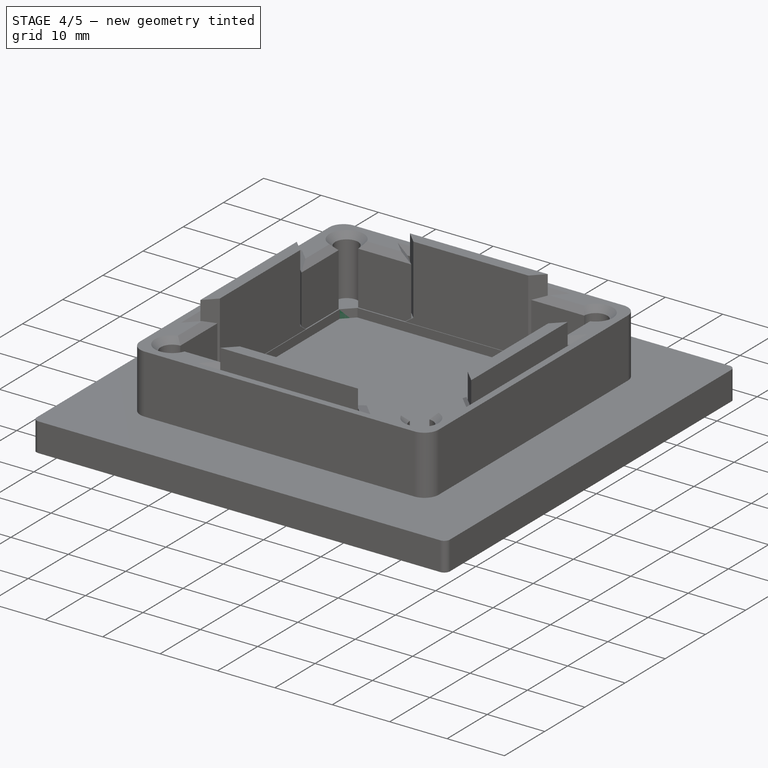
[diagram: stage 4 of 5 — iso view after this stage's code; geometry added in this stage tinted green]
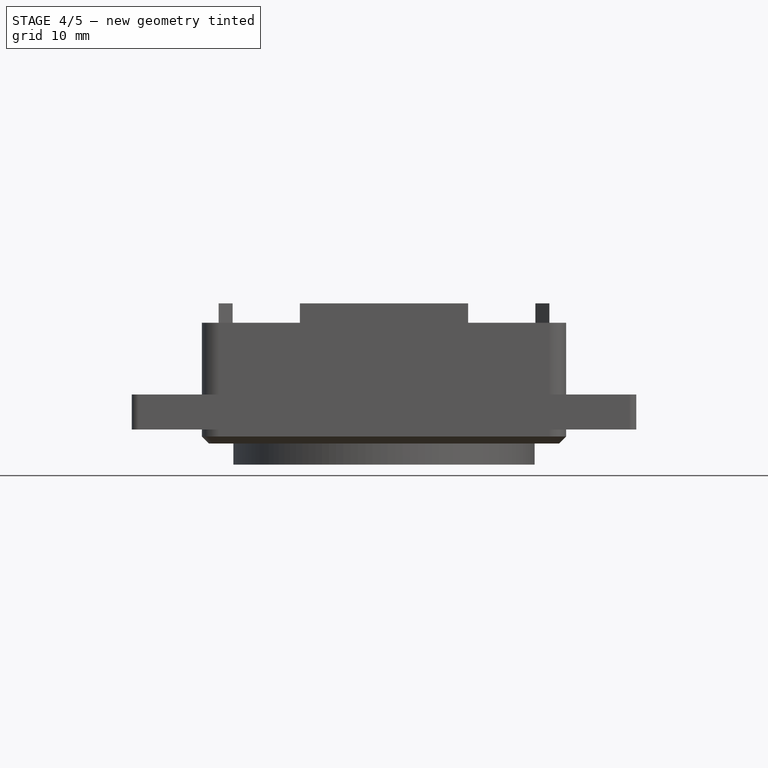
[diagram: stage 4 of 5 — front view after this stage's code; geometry added in this stage tinted green]
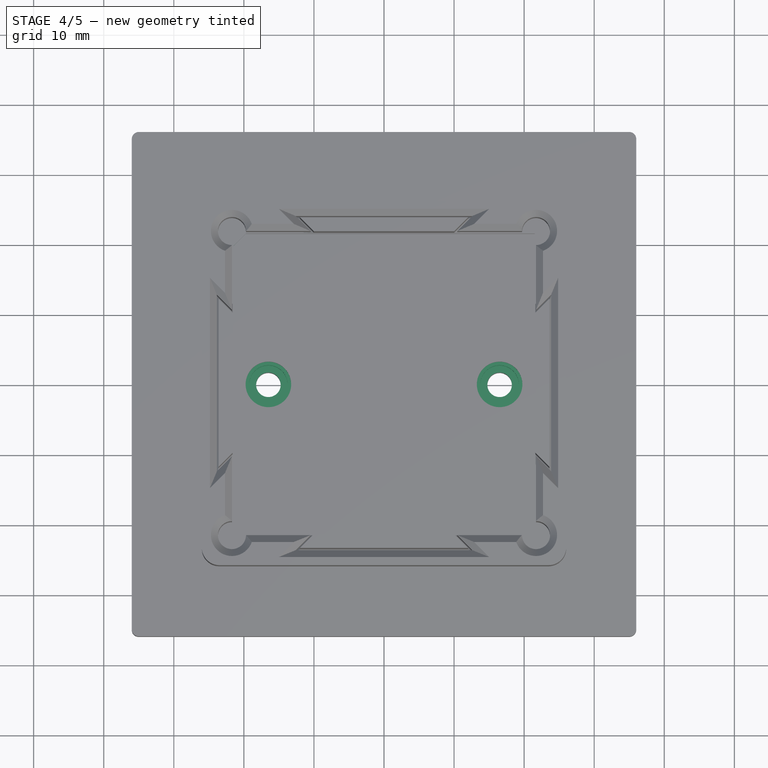
[diagram: stage 4 of 5 — top view after this stage's code; geometry added in this stage tinted green]
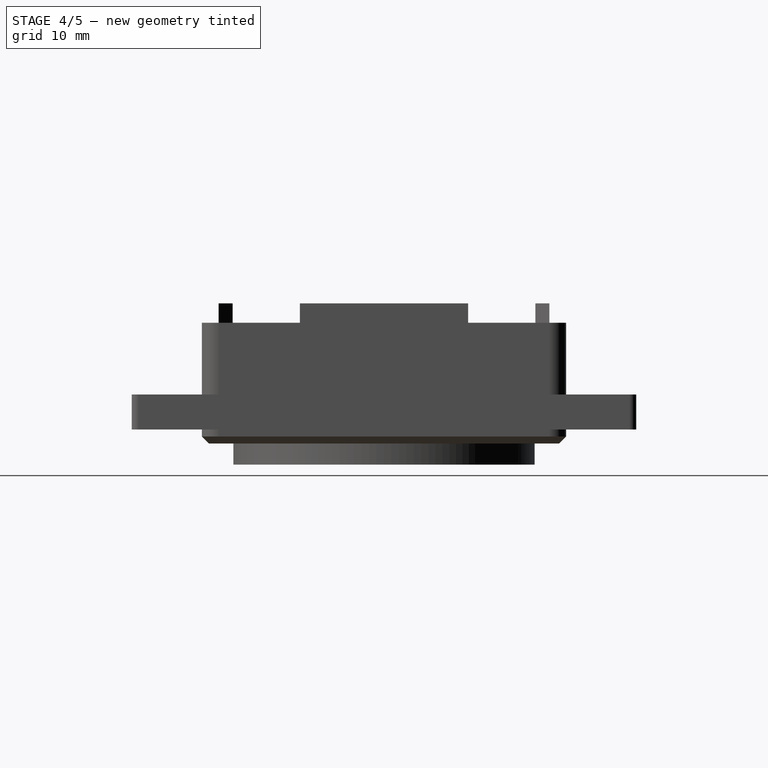
[diagram: stage 4 of 5 — right view after this stage's code; geometry added in this stage tinted green]
FEATURE [PartDesign::Body] Body
  Group = -> [Sketch,Pad,Sketch001,Pad001,Chamfer,Fillet,Fillet001,Sketch002,Pocket]
  Origin = -> Origin
  Tip = -> Pocket
FEATURE [Sketcher::SketchObject] Sketch003
  FullyConstrained = true
  MapMode = 5
  Support = -> [XY_Plane001]
  sketch-geometry (6):
    g0: LineSegment StartX=-35 StartY=35 StartZ=0 EndX=35 EndY=35 EndZ=0
    g1: LineSegment StartX=35 StartY=35 StartZ=0 EndX=35 EndY=-35 EndZ=0
    g2: LineSegment StartX=35 StartY=-35 StartZ=0 EndX=-35 EndY=-35 EndZ=0
    g3: LineSegment StartX=-35 StartY=-35 StartZ=0 EndX=-35 EndY=35 EndZ=0
    g4: Circle CenterX=-16.5 CenterY=0 CenterZ=0 NormalX=0 NormalY=0 NormalZ=1 AngleXU=0 Radius=1.75
    g5: Circle CenterX=16.5 CenterY=0 CenterZ=0 NormalX=0 NormalY=0 NormalZ=1 AngleXU=0 Radius=1.75
  constraints (16):
    c: Coincident(g0,g1)
    c: Coincident(g1,g2)
    c: Coincident(g2,g3)
    c: Coincident(g3,g0)
    c: Horizontal(g0)
    c: Horizontal(g2)
    c: Vertical(g1)
    c: Vertical(g3)
    c: Equal(g1,g2)
    c: DistanceY(g1,g1) = 70
    c: Symmetric(g0,g1,g-1)
    c: Equal(g5,g4)
    c: Diameter(g5) = 3.5
    c: Symmetric(g5,g4,g-1)
    c: Horizontal(g4,g5)
    c: DistanceX(g4,g5) = 33
FEATURE [PartDesign::Pad] Pad002
  Direction = (0,0,1)
  Length = 10
  Length2 = 10
  Midplane = true
  Profile = -> Sketch003
  ReferenceAxis = -> Sketch003 [N_Axis]
  Refine = true
  Type = 0
FEATURE [Sketcher::SketchObject] Sketch004
  FullyConstrained = false
  MapMode = 5
  Support = -> [XY_Plane001]
  sketch-geometry (5):
    g0: LineSegment StartX=-64.9252 StartY=57.7841 StartZ=0 EndX=87.757 EndY=57.7841 EndZ=0
    g1: LineSegment StartX=87.757 StartY=57.7841 StartZ=0 EndX=87.757 EndY=-81.2506 EndZ=0
    g2: LineSegment StartX=87.757 StartY=-81.2506 StartZ=0 EndX=-64.9252 EndY=-81.2506 EndZ=0
    g3: LineSegment StartX=-64.9252 StartY=-81.2506 StartZ=0 EndX=-64.9252 EndY=57.784 EndZ=0
    g4: Circle CenterX=0 CenterY=0 CenterZ=0 NormalX=0 NormalY=0 NormalZ=1 AngleXU=0 Radius=21.5
  constraints (10):
    c: Coincident(g0,g1)
    c: Coincident(g1,g2)
    c: Coincident(g2,g3)
    c: Coincident(g3,g0)
    c: Horizontal(g0)
    c: Horizontal(g2)
    c: Vertical(g1)
    c: Vertical(g3)
    c: Coincident(g4,g-1)
    c: Diameter(g4) = 43
FEATURE [PartDesign::Pocket] Pocket001
  BaseFeature = -> Pad002
  Direction = (0,0,-1)
  Length = 5
  Length2 = 5
  Profile = -> Sketch004
  ReferenceAxis = -> Sketch004 [N_Axis]
  Refine = true
  Type = 0
FEATURE [Sketcher::SketchObject] Sketch005
  ExternalGeometry = -> [Pocket001]
  FullyConstrained = true
  MapMode = 5
  Support = -> [XY_Plane001]
  sketch-geometry (2):
    g0: Circle CenterX=-16.5 CenterY=0 CenterZ=0 NormalX=0 NormalY=0 NormalZ=1 AngleXU=0 Radius=2.75
    g1: Circle CenterX=16.5 CenterY=0 CenterZ=0 NormalX=0 NormalY=0 NormalZ=1 AngleXU=0 Radius=2.75
  constraints (4):
    c: Equal(g1,g0)
    c: Diameter(g0) = 5.5
    c: Coincident(g0,g-3)
    c: Coincident(g1,g-4)
FEATURE [PartDesign::Pocket] Pocket002
  BaseFeature = -> Pocket001
  Direction = (0,0,-1)
  Length = 5
  Length2 = 5
  Profile = -> Sketch005
  ReferenceAxis = -> Sketch005 [N_Axis]
  Refine = true
  Reversed = true
  Type = 0
FEATURE [Sketcher::SketchObject] Sketch006
  AttachmentOffset = pos=(0,0,2) rot=(0,0,1;0rad)
  FullyConstrained = true
  MapMode = 5
  Placement = pos=(0,0,2) rot=(0,0,1;0rad)
  Support = -> [XY_Plane001]
  sketch-geometry (4):
    g0: LineSegment StartX=-21.5 StartY=21.5 StartZ=0 EndX=21.5 EndY=21.5 EndZ=0
    g1: LineSegment StartX=21.5 StartY=21.5 StartZ=0 EndX=21.5 EndY=-21.5 EndZ=0
    g2: LineSegment StartX=21.5 StartY=-21.5 StartZ=0 EndX=-21.5 EndY=-21.5 EndZ=0
    g3: LineSegment StartX=-21.5 StartY=-21.5 StartZ=0 EndX=-21.5 EndY=21.5 EndZ=0
  constraints (11):
    c: Coincident(g0,g1)
    c: Coincident(g1,g2)
    c: Coincident(g2,g3)
    c: Coincident(g3,g0)
    c: Horizontal(g0)
    c: Horizontal(g2)
    c: Vertical(g1)
    c: Vertical(g3)
    c: Equal(g0,g1)
    c: Symmetric(g0,g1,g-1)
    c: DistanceY(g1,g1) = 43
FEATURE [PartDesign::Pocket] Pocket003
  BaseFeature = -> Pocket002
  Direction = (0,0,-1)
  Length = 5
  Length2 = 5
  Profile = -> Sketch006
  ReferenceAxis = -> Sketch006 [N_Axis]
  Refine = true
  Reversed = true
  Type = 0
FEATURE [PartDesign::Fillet] Fillet002
  Base = -> Pocket003 [Edge11,Edge3,Edge10,Edge12,Edge4,Edge17,Edge2,Edge9]
  BaseFeature = -> Pocket003
  Radius = 1
  Refine = true
  SupportTransform = false
  UseAllEdges = false
FEATURE [PartDesign::Fillet] Fillet003
  Base = -> Chamfer002 [Edge31]
  BaseFeature = -> Chamfer002
  Radius = 1
  Refine = true
  SupportTransform = false
  UseAllEdges = false
FEATURE [PartDesign::Fillet] Fillet004
  Base = -> Fillet003 [Face14]
  BaseFeature = -> Fillet003
  Radius = 2
  Refine = true
  SupportTransform = false
  UseAllEdges = false
FEATURE [Sketcher::SketchObject] Sketch014
  AttachmentOffset = pos=(0,0,2) rot=(0,0,1;0rad)
  FullyConstrained = true
  MapMode = 5
  Placement = pos=(0,0,2) rot=(0,0,1;0rad)
  Support = -> [XY_Plane002]
  sketch-geometry (20):
    g0: LineSegment StartX=-20 StartY=20 StartZ=0 EndX=-8 EndY=20 EndZ=0
    g1: LineSegment StartX=-8 StartY=20 StartZ=0 EndX=-8 EndY=8 EndZ=0
    g2: LineSegment StartX=-8 StartY=8 StartZ=0 EndX=-20 EndY=8 EndZ=0
    g3: LineSegment StartX=-20 StartY=8 StartZ=0 EndX=-20 EndY=20 EndZ=0
    g4: LineSegment StartX=8 StartY=20 StartZ=0 EndX=20 EndY=20 EndZ=0
    g5: LineSegment StartX=20 StartY=20 StartZ=0 EndX=20 EndY=8 EndZ=0
    g6: LineSegment StartX=20 StartY=8 StartZ=0 EndX=8 EndY=8 EndZ=0
    g7: LineSegment StartX=8 StartY=8 StartZ=0 EndX=8 EndY=20 EndZ=0
    g8: LineSegment StartX=-20 StartY=-8 StartZ=0 EndX=-8 EndY=-8 EndZ=0
    g9: LineSegment StartX=-8 StartY=-8 StartZ=0 EndX=-8 EndY=-20 EndZ=0
    g10: LineSegment StartX=-8 StartY=-20 StartZ=0 EndX=-20 EndY=-20 EndZ=0
    g11: LineSegment StartX=-20 StartY=-20 StartZ=0 EndX=-20 EndY=-8 EndZ=0
    g12: LineSegment StartX=8 StartY=-8 StartZ=0 EndX=20 EndY=-8 EndZ=0
    g13: LineSegment StartX=20 StartY=-8 StartZ=0 EndX=20 EndY=-20 EndZ=0
    g14: LineSegment StartX=20 StartY=-20 StartZ=0 EndX=8 EndY=-20 EndZ=0
    g15: LineSegment StartX=8 StartY=-20 StartZ=0 EndX=8 EndY=-8 EndZ=0
    g16: LineSegment StartX=20 StartY=20 StartZ=0 EndX=-20 EndY=20 EndZ=0
    g17: LineSegment StartX=-20 StartY=20 StartZ=0 EndX=-20 EndY=-20 EndZ=0
    g18: LineSegment StartX=-20 StartY=-20 StartZ=0 EndX=20 EndY=-20 EndZ=0
    g19: LineSegment StartX=20 StartY=-20 StartZ=0 EndX=20 EndY=20 EndZ=0
  constraints (55):
    c: Coincident(g0,g1)
    c: Coincident(g1,g2)
    c: Coincident(g2,g3)
    c: Coincident(g3,g0)
    c: Horizontal(g0)
    c: Horizontal(g2)
    c: Vertical(g1)
    c: Vertical(g3)
    c: Coincident(g4,g5)
    c: Coincident(g5,g6)
    c: Coincident(g6,g7)
    c: Coincident(g7,g4)
    c: Horizontal(g4)
    c: Horizontal(g6)
    c: Vertical(g5)
    c: Vertical(g7)
    c: Coincident(g8,g9)
    c: Coincident(g9,g10)
    c: Coincident(g10,g11)
    c: Coincident(g11,g8)
    c: Horizontal(g8)
    c: Horizontal(g10)
    c: Vertical(g9)
    c: Vertical(g11)
    c: Coincident(g12,g13)
    c: Coincident(g13,g14)
    c: Coincident(g14,g15)
    c: Coincident(g15,g12)
    c: Horizontal(g12)
    c: Horizontal(g14)
    c: Vertical(g13)
    c: Vertical(g15)
    c: Coincident(g16,g17)
    c: Coincident(g17,g18)
    c: Coincident(g18,g19)
    c: Coincident(g19,g16)
    c: Horizontal(g16)
    c: Horizontal(g18)
    c: Vertical(g17)
    c: Vertical(g19)
    c: Symmetric(g18,g16,g-1)
    c: Equal(g16,g19)
    c: DistanceY(g19,g19) = 40
    c: Equal(g0,g3)
    c: Equal(g3,g11)
    c: Equal(g11,g10)
    c: Equal(g10,g14)
    c: Equal(g14,g13)
    c: Equal(g13,g5)
    c: Equal(g5,g4)
    c: Symmetric(g0,g13,g-1)
    c: Symmetric(g4,g10,g-1)
    c: Coincident(g0,g16)
    c: Coincident(g10,g17)
    c: DistanceY(g1,g1) = 12
FEATURE [PartDesign::Pocket] Pocket010
  BaseFeature = -> Fillet004
  Direction = (0,0,-1)
  Length = 1
  Length2 = 5
  Profile = -> Sketch014
  ReferenceAxis = -> Sketch014 [N_Axis]
  Refine = true
  Reversed = true
  Type = 0
FEATURE [PartDesign::Chamfer] Chamfer003
  Angle = 45
  Base = -> Pocket010 [Edge56,Edge60]
  BaseFeature = -> Pocket010
  ChamferType = 0
  FlipDirection = false
  Refine = true
  Size = 2
  Size2 = 1
  SupportTransform = false
  UseAllEdges = false
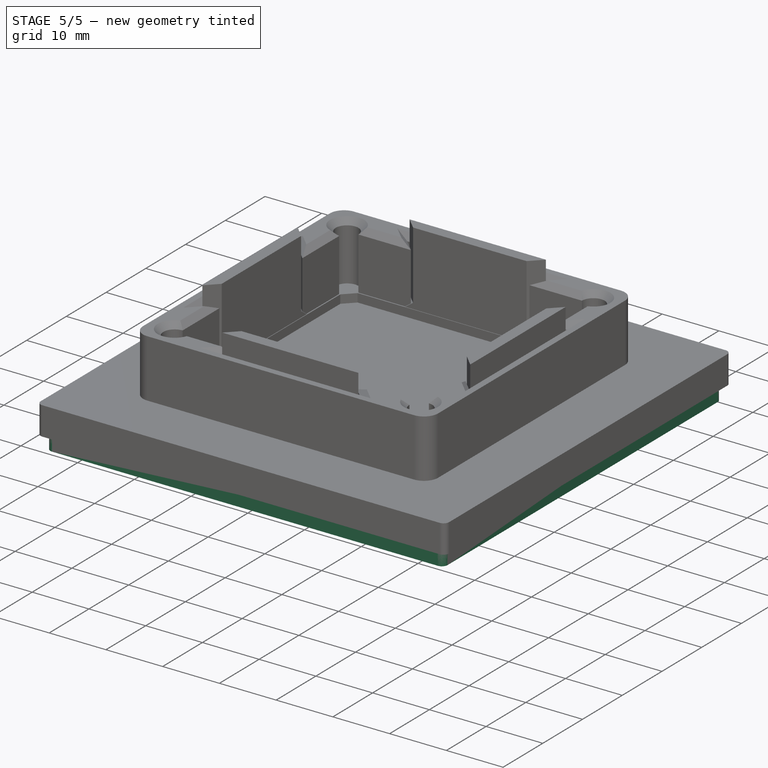
[diagram: stage 5 of 5 — iso view after this stage's code; geometry added in this stage tinted green]
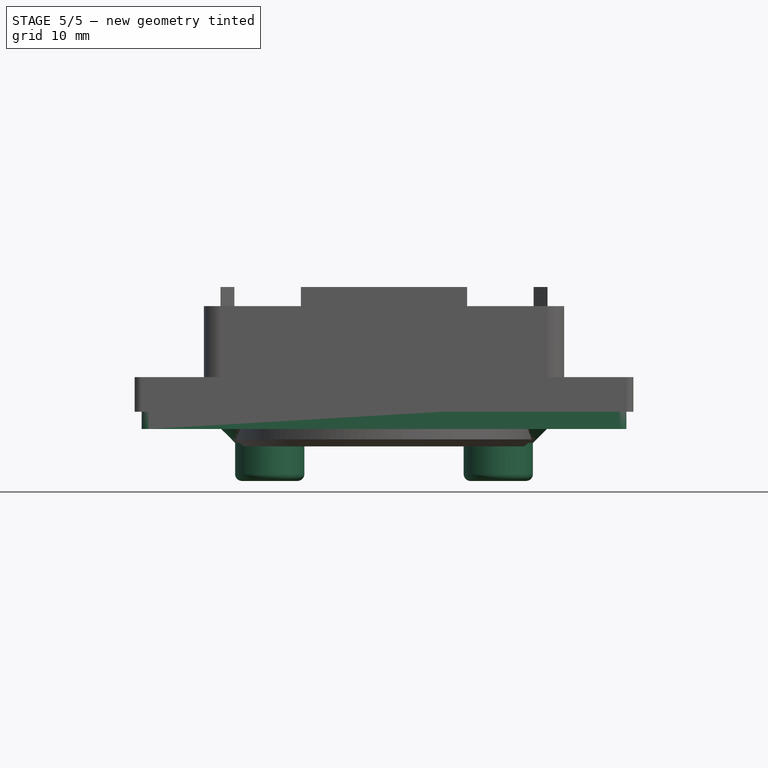
[diagram: stage 5 of 5 — front view after this stage's code; geometry added in this stage tinted green]
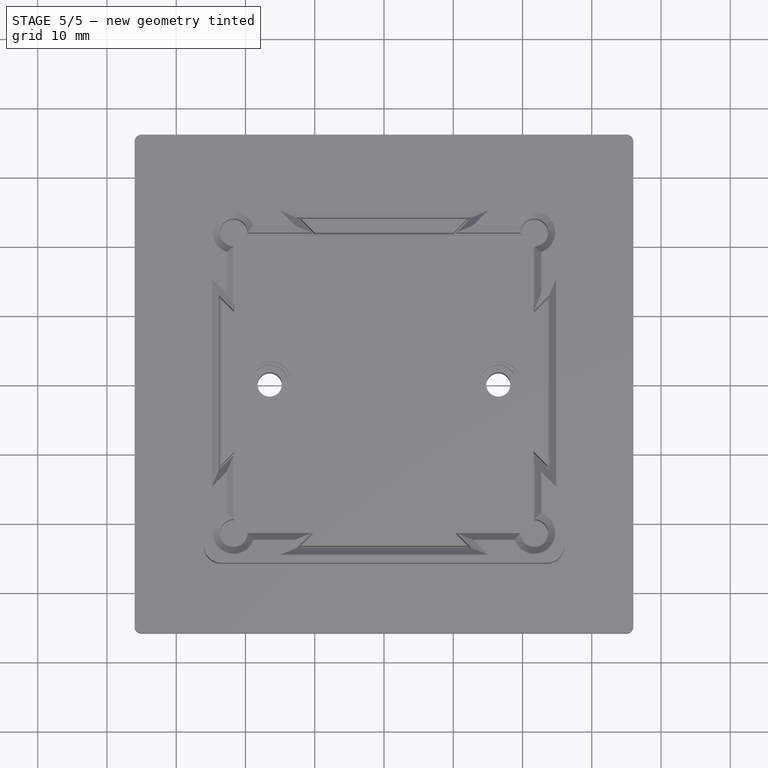
[diagram: stage 5 of 5 — top view after this stage's code; geometry added in this stage tinted green]
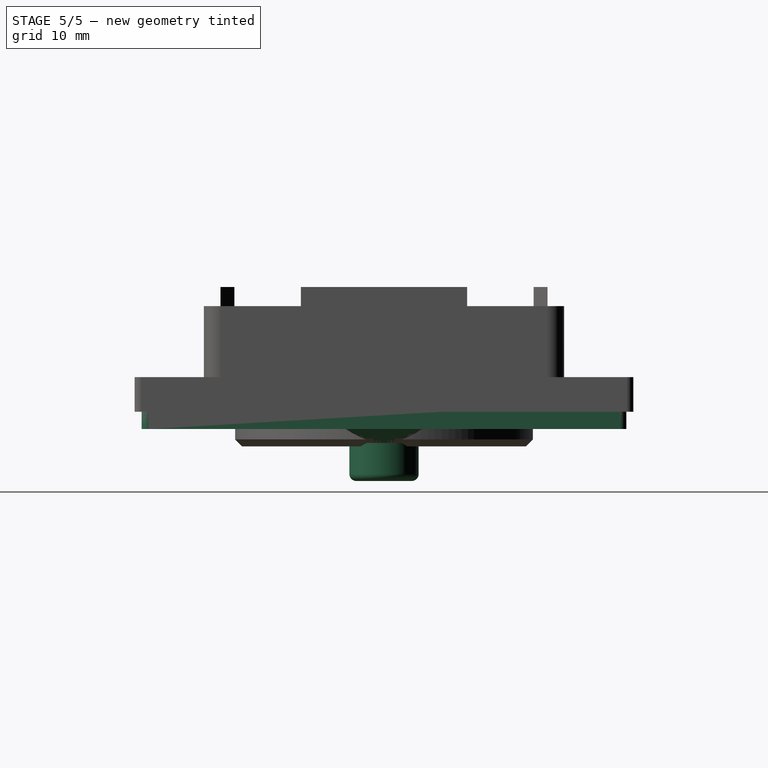
[diagram: stage 5 of 5 — right view after this stage's code; geometry added in this stage tinted green]
FEATURE [Sketcher::SketchObject] Sketch
  FullyConstrained = true
  MapMode = 5
  Support = -> [XY_Plane]
  sketch-geometry (11):
    g0: LineSegment StartX=-35 StartY=35 StartZ=0 EndX=35 EndY=35 EndZ=0
    g1: LineSegment StartX=35 StartY=35 StartZ=0 EndX=35 EndY=-35 EndZ=0
    g2: LineSegment StartX=35 StartY=-35 StartZ=0 EndX=-35 EndY=-35 EndZ=0
    g3: LineSegment StartX=-35 StartY=-35 StartZ=0 EndX=-35 EndY=35 EndZ=0
    g4: Circle CenterX=0 CenterY=1e-16 CenterZ=0 NormalX=0 NormalY=0 NormalZ=1 AngleXU=0 Radius=22.5
    g5: Circle CenterX=-16.5 CenterY=0 CenterZ=0 NormalX=0 NormalY=0 NormalZ=1 AngleXU=0 Radius=2.75
    g6: Circle CenterX=16.5 CenterY=0 CenterZ=0 NormalX=0 NormalY=0 NormalZ=1 AngleXU=0 Radius=2.75
    g7: LineSegment StartX=-21.5 StartY=21.5 StartZ=0 EndX=21.5 EndY=21.5 EndZ=0
    g8: LineSegment StartX=21.5 StartY=21.5 StartZ=0 EndX=21.5 EndY=-21.5 EndZ=0
    g9: LineSegment StartX=21.5 StartY=-21.5 StartZ=0 EndX=-21.5 EndY=-21.5 EndZ=0
    g10: LineSegment StartX=-21.5 StartY=-21.5 StartZ=0 EndX=-21.5 EndY=21.5 EndZ=0
  constraints (29):
    c: Coincident(g0,g1)
    c: Coincident(g1,g2)
    c: Coincident(g2,g3)
    c: Coincident(g3,g0)
    c: Horizontal(g0)
    c: Horizontal(g2)
    c: Vertical(g1)
    c: Vertical(g3)
    c: Equal(g1,g0)
    c: Symmetric(g0,g1,g-1)
    c: DistanceY(g1,g1) = 70
    c: Coincident(g4,g-1)
    c: Diameter(g4) = 45
    c: Equal(g6,g5)
    c: Diameter(g6) = 5.5
    c: PointOnObject(g5,g-1)
    c: Symmetric(g6,g5,g4)
    c: DistanceX(g5,g6) = 33
    c: Coincident(g7,g8)
    c: Coincident(g8,g9)
    c: Coincident(g9,g10)
    c: Coincident(g10,g7)
    c: Horizontal(g7)
    c: Horizontal(g9)
    c: Vertical(g8)
    c: Vertical(g10)
    c: Equal(g7,g8)
    c: Symmetric(g8,g7,g4)
    c: DistanceY(g8,g8) = 43
FEATURE [PartDesign::Pad] Pad
  Direction = (0,0,1)
  Length = 5
  Length2 = 10
  Midplane = true
  Profile = -> Sketch
  ReferenceAxis = -> Sketch [N_Axis]
  Refine = true
  Type = 0
FEATURE [Sketcher::SketchObject] Sketch001
  ExternalGeometry = -> [Pad]
  FullyConstrained = true
  MapMode = 5
  Support = -> [XY_Plane]
  sketch-geometry (5):
    g0: Circle CenterX=-16.5 CenterY=0 CenterZ=0 NormalX=0 NormalY=0 NormalZ=1 AngleXU=0 Radius=5
    g1: Circle CenterX=16.5 CenterY=0 CenterZ=0 NormalX=0 NormalY=0 NormalZ=1 AngleXU=0 Radius=5
    g2: Circle CenterX=0 CenterY=0 CenterZ=0 NormalX=0 NormalY=0 NormalZ=1 AngleXU=0 Radius=22.5
    g3: Circle CenterX=-16.5 CenterY=0 CenterZ=0 NormalX=0 NormalY=0 NormalZ=1 AngleXU=0 Radius=1.75
    g4: Circle CenterX=16.5 CenterY=0 CenterZ=0 NormalX=0 NormalY=0 NormalZ=1 AngleXU=0 Radius=1.75
  constraints (10):
    c: Coincident(g2,g-1)
    c: Diameter(g2) = 45
    c: Coincident(g1,g-4)
    c: Coincident(g0,g-3)
    c: Diameter(g1) = 10
    c: Equal(g0,g1)
    c: Equal(g4,g3)
    c: Diameter(g3) = 3.5
    c: Coincident(g3,g0)
    c: Coincident(g4,g1)
FEATURE [PartDesign::Pad] Pad001
  BaseFeature = -> Pad
  Direction = (0,0,1)
  Length = 10
  Length2 = 10
  Profile = -> Sketch001
  ReferenceAxis = -> Sketch001 [N_Axis]
  Refine = true
  Reversed = true
  Type = 0
FEATURE [PartDesign::Chamfer] Chamfer
  Angle = 45
  Base = -> Pad001 [Edge12,Edge13]
  BaseFeature = -> Pad001
  ChamferType = 0
  FlipDirection = false
  Refine = true
  Size = 2
  Size2 = 1
  SupportTransform = false
  UseAllEdges = false
FEATURE [PartDesign::Fillet] Fillet
  Base = -> Chamfer [Edge24,Edge20]
  BaseFeature = -> Chamfer
  Radius = 1
  Refine = true
  SupportTransform = false
  UseAllEdges = false
FEATURE [PartDesign::Fillet] Fillet001
  Base = -> Fillet [Edge19,Edge21,Edge17,Edge16,Edge20,Edge18,Edge22,Edge23]
  BaseFeature = -> Fillet
  Radius = 1
  Refine = true
  SupportTransform = false
  UseAllEdges = false
FEATURE [Sketcher::SketchObject] Sketch002
  AttachmentOffset = pos=(0,0,2) rot=(0,0,1;0rad)
  FullyConstrained = true
  MapMode = 5
  Placement = pos=(0,0,2) rot=(0,0,1;0rad)
  Support = -> [XY_Plane]
  sketch-geometry (4):
    g0: LineSegment StartX=-21.5 StartY=21.5 StartZ=0 EndX=21.5 EndY=21.5 EndZ=0
    g1: LineSegment StartX=21.5 StartY=21.5 StartZ=0 EndX=21.5 EndY=-21.5 EndZ=0
    g2: LineSegment StartX=21.5 StartY=-21.5 StartZ=0 EndX=-21.5 EndY=-21.5 EndZ=0
    g3: LineSegment StartX=-21.5 StartY=-21.5 StartZ=0 EndX=-21.5 EndY=21.5 EndZ=0
  constraints (11):
    c: Coincident(g0,g1)
    c: Coincident(g1,g2)
    c: Coincident(g2,g3)
    c: Coincident(g3,g0)
    c: Horizontal(g0)
    c: Horizontal(g2)
    c: Vertical(g1)
    c: Vertical(g3)
    c: Equal(g0,g1)
    c: Symmetric(g0,g1,g-1)
    c: DistanceY(g1,g1) = 43
FEATURE [PartDesign::Pocket] Pocket
  BaseFeature = -> Fillet001
  Direction = (0,0,-1)
  Length = 5
  Length2 = 5
  Profile = -> Sketch002
  ReferenceAxis = -> Sketch002 [N_Axis]
  Refine = true
  Reversed = true
  Type = 0
FEATURE [Sketcher::SketchObject] Sketch007
  FullyConstrained = true
  MapMode = 5
  Support = -> [XY_Plane001]
  sketch-geometry (4):
    g0: LineSegment StartX=-12.5 StartY=12.5 StartZ=0 EndX=12.5 EndY=12.5 EndZ=0
    g1: LineSegment StartX=12.5 StartY=12.5 StartZ=0 EndX=12.5 EndY=-12.5 EndZ=0
    g2: LineSegment StartX=12.5 StartY=-12.5 StartZ=0 EndX=-12.5 EndY=-12.5 EndZ=0
    g3: LineSegment StartX=-12.5 StartY=-12.5 StartZ=0 EndX=-12.5 EndY=12.5 EndZ=0
  constraints (11):
    c: Coincident(g0,g1)
    c: Coincident(g1,g2)
    c: Coincident(g2,g3)
    c: Coincident(g3,g0)
    c: Horizontal(g0)
    c: Horizontal(g2)
    c: Vertical(g1)
    c: Vertical(g3)
    c: Equal(g0,g1)
    c: Symmetric(g0,g1,g-1)
    c: DistanceY(g1,g1) = 25
FEATURE [PartDesign::Pocket] Pocket004
  BaseFeature = -> Fillet002
  Direction = (0,0,-1)
  Length = 3
  Length2 = 5
  Profile = -> Sketch007
  ReferenceAxis = -> Sketch007 [N_Axis]
  Refine = true
  Reversed = true
  Type = 0
FEATURE [PartDesign::Chamfer] Chamfer001
  Angle = 45
  Base = -> Pocket004 [Edge12,Edge30]
  BaseFeature = -> Pocket004
  ChamferType = 0
  FlipDirection = false
  Refine = true
  Size = 1
  Size2 = 1
  SupportTransform = false
  UseAllEdges = false
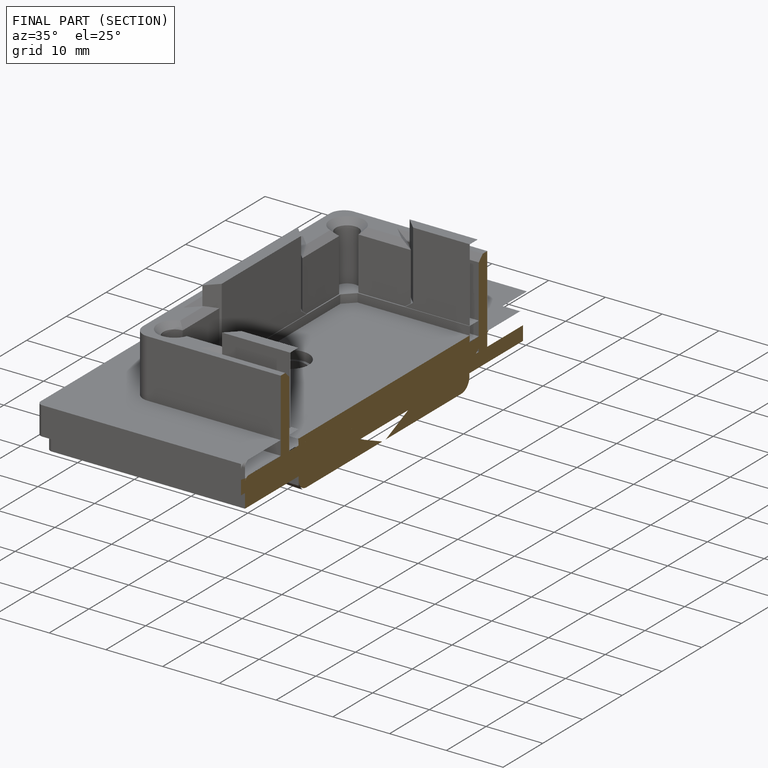
[diagram: finished part — half-section view (interior)]
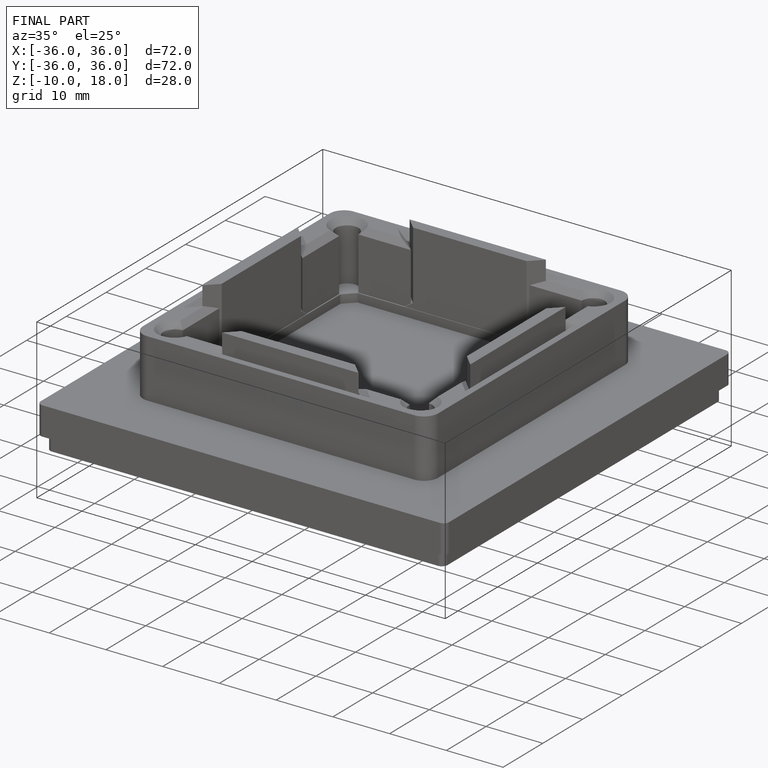
[diagram: finished part — iso view with bounding-box wireframe]
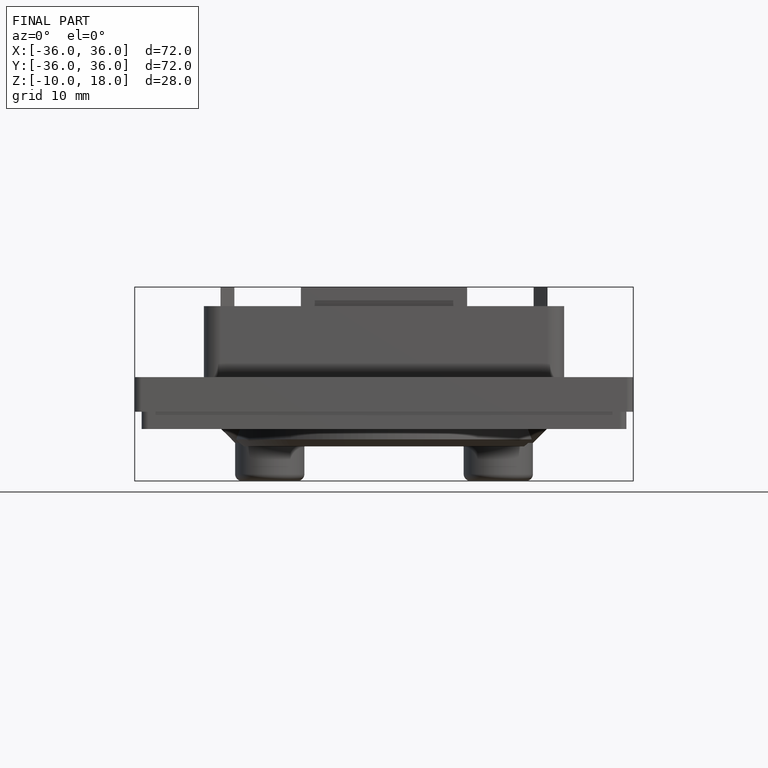
[diagram: finished part — front view with bounding-box wireframe]
